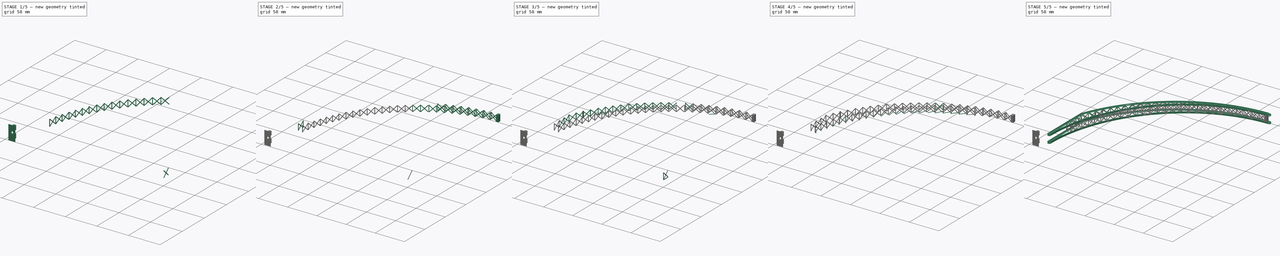
[diagram: build sequence overview — one tinted view per stage of 5, left to right]
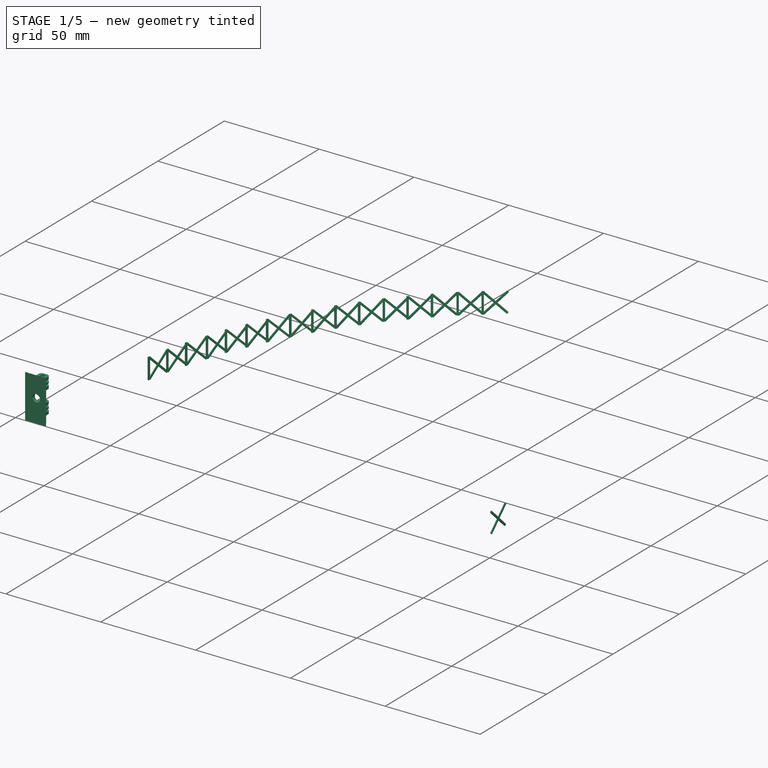
[diagram: stage 1 of 5 — iso view after this stage's code; geometry added in this stage tinted green]
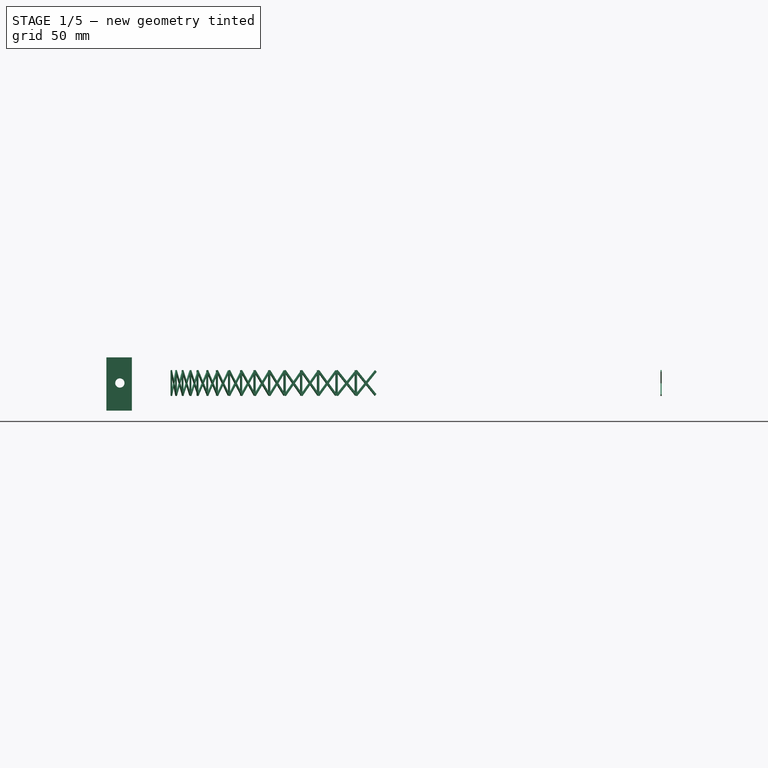
[diagram: stage 1 of 5 — front view after this stage's code; geometry added in this stage tinted green]
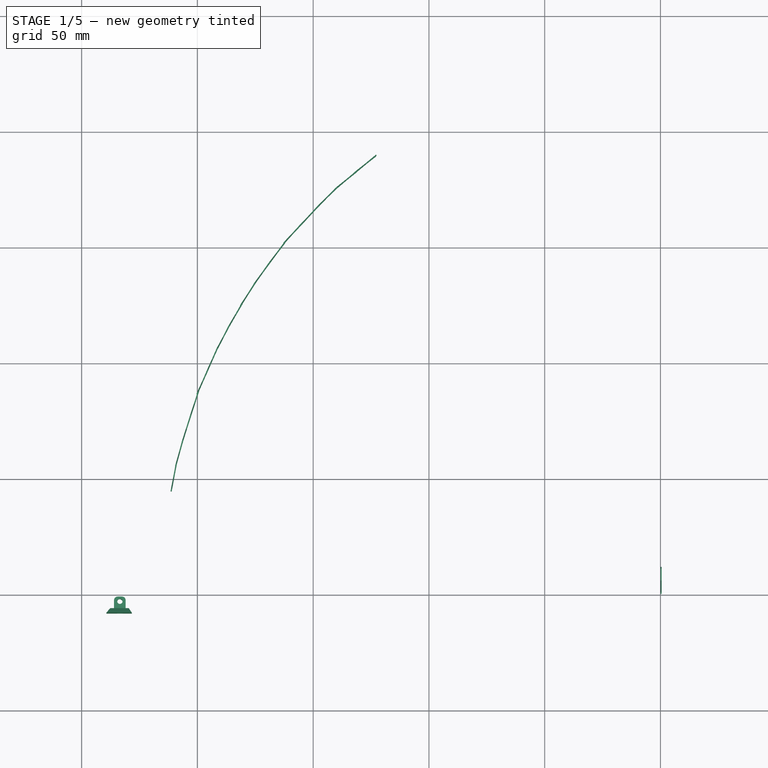
[diagram: stage 1 of 5 — top view after this stage's code; geometry added in this stage tinted green]
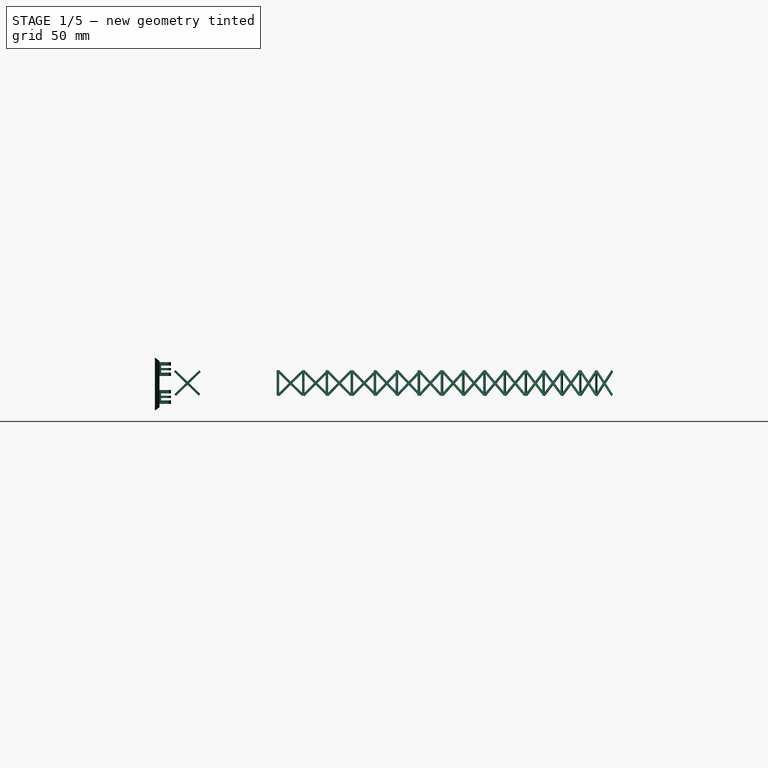
[diagram: stage 1 of 5 — right view after this stage's code; geometry added in this stage tinted green]
FCSTD DOCUMENT  (FreeCAD 0.16R6712 (Git))
Label: Cabriada final entera
License: All rights reserved
LicenseURL: http://en.wikipedia.org/wiki/All_rights_reserved
objects: Part::Box×272, Part::MultiFuse×61, Part::Cut×58, Sketcher::SketchObject×17, Part::Sweep×4, Part::Extrusion×4, Part::Part2DObjectPython×2, PartDesign::Pad×2, Part::Loft×1, Part::Cylinder×1, Part::Fillet×1
note: 425 computed .brp shape members not serialized (recipe doc carries the construction recipe); baked Part::Feature solids carry a one-line shape summary decoded from their .brp

FEATURE [Sketcher::SketchObject] Sketch003
  sketch-geometry (7):
    g0: LineSegment StartX=-0.94599 StartY=5 StartZ=0 EndX=0.94599 EndY=5 EndZ=0
    g1: LineSegment StartX=2.5 StartY=3.44599 StartZ=0 EndX=2.5 EndY=0 EndZ=0
    g2: LineSegment StartX=2.5 StartY=0 StartZ=0 EndX=-2.5 EndY=0 EndZ=0
    g3: LineSegment StartX=-2.5 StartY=0 StartZ=0 EndX=-2.5 EndY=3.44599 EndZ=0
    g4: ArcOfCircle CenterX=0.94599 CenterY=3.44599 CenterZ=0 NormalX=0 NormalY=0 NormalZ=1 Radius=1.55401 StartAngle=0 EndAngle=1.5708
    g5: ArcOfCircle CenterX=-0.94599 CenterY=3.44599 CenterZ=0 NormalX=0 NormalY=0 NormalZ=1 Radius=1.55401 StartAngle=1.5708 EndAngle=3.14159
    g6: Circle CenterX=0 CenterY=2.97603 CenterZ=0 NormalX=0 NormalY=0 NormalZ=1 Radius=1.15
  constraints (19):
    c: Coincident(g1,g2)
    c: Coincident(g2,g3)
    c: Horizontal(g0)
    c: Horizontal(g2)
    c: Vertical(g1)
    c: Vertical(g3)
    c: PointOnObject(g1,g-1)
    c: Tangent(g0,g4) = 1.5708
    c: Tangent(g1,g4) = 1.5708
    c: Tangent(g0,g5) = 1.5708
    c: Tangent(g3,g5) = 1.5708
    c: Symmetric(g2,g1,g-2)
    c: Equal(g4,g5)
    c: DistanceX(g2,g2) = 5
    c: DistanceY(g1,g0) = 5
    c: PointOnObject(g6,g-2)
    c: Radius(g6) = 1.15
    c: Radius(g5) = 1.55401
    c: DistanceY(g2,g6) = 2.97603
FEATURE [PartDesign::Pad] Pad  label="Pivote del piso"
  Length = 6
  Length2 = 100
  Midplane = true
  Sketch = -> Sketch003
  Type = 0
FEATURE [Part::Box] Box002  label="Cubo002"
  Height = 1
  Length = 10
  Placement = pos=(-5,0.7,-1.5) rot=(0,0,1;0rad)
  Width = 10
FEATURE [Sketcher::SketchObject] Sketch006  label="Pivote inf "
  Placement = pos=(0,12,0) rot=(0,0,1;3.14159rad)
  sketch-geometry (7):
    g0: LineSegment StartX=-0.94599 StartY=5 StartZ=0 EndX=0.94599 EndY=5 EndZ=0
    g1: LineSegment StartX=2.5 StartY=3.44599 StartZ=0 EndX=2.5 EndY=0 EndZ=0
    g2: LineSegment StartX=2.5 StartY=0 StartZ=0 EndX=-2.5 EndY=0 EndZ=0
    g3: LineSegment StartX=-2.5 StartY=0 StartZ=0 EndX=-2.5 EndY=3.44599 EndZ=0
    g4: ArcOfCircle CenterX=0.94599 CenterY=3.44599 CenterZ=0 NormalX=0 NormalY=0 NormalZ=1 Radius=1.55401 StartAngle=0 EndAngle=1.5708
    g5: ArcOfCircle CenterX=-0.94599 CenterY=3.44599 CenterZ=0 NormalX=0 NormalY=0 NormalZ=1 Radius=1.55401 StartAngle=1.5708 EndAngle=3.14159
    g6: Circle CenterX=0 CenterY=2.97603 CenterZ=0 NormalX=0 NormalY=0 NormalZ=1 Radius=1.15
  constraints (19):
    c: Coincident(g1,g2)
    c: Coincident(g2,g3)
    c: Horizontal(g0)
    c: Horizontal(g2)
    c: Vertical(g1)
    c: Vertical(g3)
    c: PointOnObject(g1,g-1)
    c: Tangent(g0,g4) = 1.5708
    c: Tangent(g1,g4) = 1.5708
    c: Tangent(g0,g5) = 1.5708
    c: Tangent(g3,g5) = 1.5708
    c: Symmetric(g2,g1,g-2)
    c: Equal(g4,g5)
    c: DistanceX(g2,g2) = 5
    c: DistanceY(g1,g0) = 5
    c: PointOnObject(g6,g-2)
    c: Radius(g6) = 1.15
    c: Radius(g5) = 1.55401
    c: DistanceY(g2,g6) = 2.97603
FEATURE [Part::Box] Box004  label="Cubo004"
  Height = 1
  Length = 10
  Placement = pos=(-6,0.7,0.5) rot=(0,0,1;0rad)
  Width = 10
FEATURE [Part::Cut] Cut004
  Base = -> Pad
  Tool = -> Box002
FEATURE [Part::Cut] Cut005  label="Pivote Piso"
  Base = -> Cut004
  Placement = pos=(-233.5,-6,0) rot=(0,0,1;0rad)
  Tool = -> Box004
FEATURE [Part::Box] Box324  label="Cubo323"
  Height = 15
  Length = 0.5
  Placement = pos=(0,11,0.5) rot=(1,0,0;0.802851rad)
  Width = 1
FEATURE [Part::Box] Box325  label="Cubo324"
  Height = 15
  Length = 0.5
  Placement = pos=(0,0.4,1.1) rot=(-1,0,0;0.802851rad)
  Width = 1
FEATURE [Part::Box] Box326  label="Cubo325"
  Height = 11
  Length = 0.5
  Placement = pos=(0,0,0.5) rot=(0,0,1;0rad)
  Width = 1
FEATURE [Part::Box] Box327  label="Cubo326"
  Height = 15
  Length = 0.5
  Placement = pos=(0,11,0.5) rot=(1,0,0;0.802851rad)
  Width = 1
FEATURE [Part::Box] Box328  label="Cubo327"
  Height = 15
  Length = 0.5
  Placement = pos=(0,0.4,1.1) rot=(-1,0,0;0.802851rad)
  Width = 1
FEATURE [Part::MultiFuse] Fusion051  label="Refuerzo interior 009"
  Placement = pos=(-132.1,182.5,0) rot=(0,0,-1;0.890118rad)
  Shapes = -> [Box326,Box327,Box328]
FEATURE [Part::Box] Box329  label="Cubo328"
  Height = 11
  Length = 0.5
  Placement = pos=(0,0,0.5) rot=(0,0,1;0rad)
  Width = 1
FEATURE [Part::Box] Box330  label="Cubo329"
  Height = 15
  Length = 0.5
  Placement = pos=(0,11,0.5) rot=(1,0,0;0.802851rad)
  Width = 1
FEATURE [Part::Box] Box331  label="Cubo330"
  Height = 15
  Length = 0.5
  Placement = pos=(0,0.4,1.1) rot=(-1,0,0;0.802851rad)
  Width = 1
FEATURE [Part::MultiFuse] Fusion052  label="Refuerzo interior 008"
  Placement = pos=(-140.4,175.6,0) rot=(0,0,-1;0.883137rad)
  Shapes = -> [Box329,Box330,Box331]
FEATURE [Part::Box] Box332  label="Cubo331"
  Height = 11
  Length = 0.5
  Placement = pos=(0,0,0.5) rot=(0,0,1;0rad)
  Width = 1
FEATURE [Part::Box] Box333  label="Cubo332"
  Height = 15
  Length = 0.5
  Placement = pos=(0,11,0.5) rot=(1,0,0;0.802851rad)
  Width = 1
FEATURE [Part::Box] Box334  label="Cubo333"
  Height = 15
  Length = 0.5
  Placement = pos=(0,0.4,1.1) rot=(-1,0,0;0.802851rad)
  Width = 1
FEATURE [Part::MultiFuse] Fusion053  label="Refuerzo interior 007"
  Placement = pos=(-148.4,167.6,0) rot=(0,0,-1;0.787143rad)
  Shapes = -> [Box332,Box333,Box334]
FEATURE [Part::Box] Box335  label="Cubo334"
  Height = 11
  Length = 0.5
  Placement = pos=(0,0,0.5) rot=(0,0,1;0rad)
  Width = 1
FEATURE [Part::Box] Box336  label="Cubo335"
  Height = 15
  Length = 0.5
  Placement = pos=(0,11,0.5) rot=(1,0,0;0.802851rad)
  Width = 1
FEATURE [Part::Box] Box337  label="Cubo336"
  Height = 15
  Length = 0.5
  Placement = pos=(0,0.4,1.1) rot=(-1,0,0;0.802851rad)
  Width = 1
FEATURE [Part::MultiFuse] Fusion054  label="Refuerzo interior 006"
  Placement = pos=(-155.7,159.7,0) rot=(0,0,-1;0.750492rad)
  Shapes = -> [Box335,Box336,Box337]
FEATURE [Part::Box] Box338  label="Cubo337"
  Height = 11
  Length = 0.5
  Placement = pos=(0,0,0.5) rot=(0,0,1;0rad)
  Width = 1
FEATURE [Part::Box] Box339  label="Cubo338"
  Height = 15
  Length = 0.5
  Placement = pos=(0,11,0.5) rot=(1,0,0;0.802851rad)
  Width = 1
FEATURE [Part::Box] Box340  label="Cubo339"
  Height = 15
  Length = 0.5
  Placement = pos=(0,0.4,1.1) rot=(-1,0,0;0.802851rad)
  Width = 1
FEATURE [Part::MultiFuse] Fusion055  label="Refuerzo interior 005"
  Placement = pos=(-162.85,152,0) rot=(0,0,-1;0.745256rad)
  Shapes = -> [Box338,Box339,Box340]
FEATURE [Part::Box] Box341  label="Cubo340"
  Height = 11
  Length = 0.5
  Placement = pos=(0,0,0.5) rot=(0,0,1;0rad)
  Width = 1
FEATURE [Part::Box] Box342  label="Cubo341"
  Height = 15
  Length = 0.5
  Placement = pos=(0,11,0.5) rot=(1,0,0;0.802851rad)
  Width = 1
FEATURE [Part::Box] Box343  label="Cubo342"
  Height = 15
  Length = 0.5
  Placement = pos=(0,0.4,1.1) rot=(-1,0,0;0.802851rad)
  Width = 1
FEATURE [Part::MultiFuse] Fusion056  label="Refuerzo interior 004"
  Placement = pos=(-169.5,142.89,0) rot=(0,0,-1;0.645772rad)
  Shapes = -> [Box341,Box342,Box343]
FEATURE [Part::Box] Box344  label="Cubo343"
  Height = 11
  Length = 0.5
  Placement = pos=(0,0,0.5) rot=(0,0,1;0rad)
  Width = 1
FEATURE [Part::Box] Box345  label="Cubo344"
  Height = 15
  Length = 0.5
  Placement = pos=(0,11,0.5) rot=(1,0,0;0.802851rad)
  Width = 1
FEATURE [Part::Box] Box346  label="Cubo345"
  Height = 15
  Length = 0.5
  Placement = pos=(0,0.4,1.1) rot=(-1,0,0;0.802851rad)
  Width = 1
FEATURE [Part::MultiFuse] Fusion057  label="Refuerzo interior 003"
  Placement = pos=(-175.8,134.1,0) rot=(0,0,-1;0.623083rad)
  Shapes = -> [Box344,Box345,Box346]
FEATURE [Part::Box] Box347  label="Cubo346"
  Height = 11
  Length = 0.5
  Placement = pos=(0,0,0.5) rot=(0,0,1;0rad)
  Width = 1
FEATURE [Part::Box] Box348  label="Cubo347"
  Height = 15
  Length = 0.5
  Placement = pos=(0,11,0.5) rot=(1,0,0;0.802851rad)
  Width = 1
FEATURE [Part::Box] Box349  label="Cubo348"
  Height = 15
  Length = 0.5
  Placement = pos=(0,0.4,1.1) rot=(-1,0,0;0.802851rad)
  Width = 1
FEATURE [Part::MultiFuse] Fusion058  label="Refuerzo interior 002"
  Placement = pos=(-181.6,124.9,0) rot=(0,0,-1;0.568977rad)
  Shapes = -> [Box347,Box348,Box349]
FEATURE [Part::Box] Box350  label="Cubo349"
  Height = 11
  Length = 0.5
  Placement = pos=(0,0,0.5) rot=(0,0,1;0rad)
  Width = 1
FEATURE [Part::Box] Box351  label="Cubo350"
  Height = 15
  Length = 0.5
  Placement = pos=(0,11,0.5) rot=(1,0,0;0.802851rad)
  Width = 1
FEATURE [Part::Box] Box352  label="Cubo351"
  Height = 15
  Length = 0.5
  Placement = pos=(0,0.4,1.1) rot=(-1,0,0;0.802851rad)
  Width = 1
FEATURE [Part::MultiFuse] Fusion059  label="Refuerzo interior 001"
  Placement = pos=(-186.8,115.7,0) rot=(0,0,-1;0.527089rad)
  Shapes = -> [Box350,Box351,Box352]
FEATURE [Part::Box] Box353  label="Cubo352"
  Height = 11
  Length = 0.5
  Placement = pos=(0,0,0.5) rot=(0,0,1;0rad)
  Width = 1
FEATURE [Part::Box] Box354  label="Cubo353"
  Height = 15
  Length = 0.5
  Placement = pos=(0,11,0.5) rot=(1,0,0;0.802851rad)
  Width = 1
FEATURE [Part::Box] Box355  label="Cubo354"
  Height = 15
  Length = 0.5
  Placement = pos=(0,0.4,1.1) rot=(-1,0,0;0.802851rad)
  Width = 1
FEATURE [Part::MultiFuse] Fusion060  label="Refuerzo interior 000"
  Placement = pos=(-192,105.7,0) rot=(0,0,-1;0.481711rad)
  Shapes = -> [Box353,Box354,Box355]
FEATURE [Part::Box] Box356  label="Cubo355"
  Height = 11
  Length = 0.5
  Placement = pos=(0,0,0.5) rot=(0,0,1;0rad)
  Width = 1
FEATURE [Part::Box] Box357  label="Cubo356"
  Height = 15
  Length = 0.5
  Placement = pos=(0,11,0.5) rot=(1,0,0;0.802851rad)
  Width = 1
FEATURE [Part::Box] Box358  label="Cubo357"
  Height = 15
  Length = 0.5
  Placement = pos=(0,0.4,1.1) rot=(-1,0,0;0.802851rad)
  Width = 1
FEATURE [Part::MultiFuse] Fusion061  label="Refuerzo interior -001"
  Placement = pos=(-196.2,96.2,0) rot=(0,0,-1;0.418879rad)
  Shapes = -> [Box356,Box357,Box358]
FEATURE [Part::Box] Box359  label="Cubo358"
  Height = 11
  Length = 0.5
  Placement = pos=(0,0,0.5) rot=(0,0,1;0rad)
  Width = 1
FEATURE [Part::Box] Box360  label="Cubo359"
  Height = 15
  Length = 0.5
  Placement = pos=(0,11,0.5) rot=(1,0,0;0.802851rad)
  Width = 1
FEATURE [Part::Box] Box361  label="Cubo360"
  Height = 15
  Length = 0.5
  Placement = pos=(0,0.4,1.1) rot=(-1,0,0;0.802851rad)
  Width = 1
FEATURE [Part::MultiFuse] Fusion062  label="Refuerzo interior -002"
  Placement = pos=(-200.4,86.7,0) rot=(0,0,-1;0.418879rad)
  Shapes = -> [Box359,Box360,Box361]
FEATURE [Part::Box] Box362  label="Cubo361"
  Height = 11
  Length = 0.5
  Placement = pos=(0,0,0.5) rot=(0,0,1;0rad)
  Width = 1
FEATURE [Part::Box] Box363  label="Cubo362"
  Height = 15
  Length = 0.5
  Placement = pos=(0,11,0.5) rot=(1,0,0;0.802851rad)
  Width = 1
FEATURE [Part::Box] Box364  label="Cubo363"
  Height = 15
  Length = 0.5
  Placement = pos=(0,0.4,1.1) rot=(-1,0,0;0.802851rad)
  Width = 1
FEATURE [Part::MultiFuse] Fusion063  label="Refuerzo interior -003"
  Placement = pos=(-203.4,76.7,0) rot=(0,0,-1;0.314159rad)
  Shapes = -> [Box362,Box363,Box364]
FEATURE [Part::Box] Box365  label="Cubo364"
  Height = 11
  Length = 0.5
  Placement = pos=(0,0,0.5) rot=(0,0,1;0rad)
  Width = 1
FEATURE [Part::Box] Box366  label="Cubo365"
  Height = 15
  Length = 0.5
  Placement = pos=(0,11,0.5) rot=(1,0,0;0.802851rad)
  Width = 1
FEATURE [Part::Box] Box367  label="Cubo366"
  Height = 15
  Length = 0.5
  Placement = pos=(0,0.4,1.1) rot=(-1,0,0;0.802851rad)
  Width = 1
FEATURE [Part::MultiFuse] Fusion064  label="Refuerzo interior -004"
  Placement = pos=(-206.8,65.9,0) rot=(0,0,-1;0.305433rad)
  Shapes = -> [Box365,Box366,Box367]
FEATURE [Part::Box] Box368  label="Cubo367"
  Height = 11
  Length = 0.5
  Placement = pos=(0,0,0.5) rot=(0,0,1;0rad)
  Width = 1
FEATURE [Part::Box] Box369  label="Cubo368"
  Height = 15
  Length = 0.5
  Placement = pos=(0,11,0.5) rot=(1,0,0;0.802851rad)
  Width = 1
FEATURE [Part::Box] Box370  label="Cubo369"
  Height = 15
  Length = 0.5
  Placement = pos=(0,0.4,1.1) rot=(-1,0,0;0.802851rad)
  Width = 1
FEATURE [Part::MultiFuse] Fusion065  label="Refuerzo interior -005"
  Placement = pos=(-209.6,55.7,0) rot=(0,0,-1;0.270526rad)
  Shapes = -> [Box368,Box369,Box370]
FEATURE [Part::Box] Box371  label="Cubo370"
  Height = 11
  Length = 0.5
  Placement = pos=(0,0,0.5) rot=(0,0,1;0rad)
  Width = 1
FEATURE [Part::Box] Box372  label="Cubo371"
  Height = 15
  Length = 0.5
  Placement = pos=(0,11,0.5) rot=(1,0,0;0.802851rad)
  Width = 1
FEATURE [Part::Box] Box373  label="Cubo372"
  Height = 15
  Length = 0.5
  Placement = pos=(0,0.4,1.1) rot=(-1,0,0;0.802851rad)
  Width = 1
FEATURE [Part::MultiFuse] Fusion066  label="Refuerzo interior -006"
  Placement = pos=(-211.6,44.7,0) rot=(0,0,-1;0.18675rad)
  Shapes = -> [Box371,Box372,Box373]
FEATURE [Sketcher::SketchObject] Sketch015
  sketch-geometry (7):
    g0: LineSegment StartX=-0.94599 StartY=5 StartZ=0 EndX=0.94599 EndY=5 EndZ=0
    g1: LineSegment StartX=2.5 StartY=3.44599 StartZ=0 EndX=2.5 EndY=0 EndZ=0
    g2: LineSegment StartX=2.5 StartY=0 StartZ=0 EndX=-2.5 EndY=0 EndZ=0
    g3: LineSegment StartX=-2.5 StartY=0 StartZ=0 EndX=-2.5 EndY=3.44599 EndZ=0
    g4: ArcOfCircle CenterX=0.94599 CenterY=3.44599 CenterZ=0 NormalX=0 NormalY=0 NormalZ=1 Radius=1.55401 StartAngle=0 EndAngle=1.5708
    g5: ArcOfCircle CenterX=-0.94599 CenterY=3.44599 CenterZ=0 NormalX=0 NormalY=0 NormalZ=1 Radius=1.55401 StartAngle=1.5708 EndAngle=3.14159
    g6: Circle CenterX=0 CenterY=2.97603 CenterZ=0 NormalX=0 NormalY=0 NormalZ=1 Radius=1.15
  constraints (19):
    c: Coincident(g1,g2)
    c: Coincident(g2,g3)
    c: Horizontal(g0)
    c: Horizontal(g2)
    c: Vertical(g1)
    c: Vertical(g3)
    c: PointOnObject(g1,g-1)
    c: Tangent(g0,g4) = 1.5708
    c: Tangent(g1,g4) = 1.5708
    c: Tangent(g0,g5) = 1.5708
    c: Tangent(g3,g5) = 1.5708
    c: Symmetric(g2,g1,g-2)
    c: Equal(g4,g5)
    c: DistanceX(g2,g2) = 5
    c: DistanceY(g1,g0) = 5
    c: PointOnObject(g6,g-2)
    c: Radius(g6) = 1.15
    c: Radius(g5) = 1.55401
    c: DistanceY(g2,g6) = 2.97603
FEATURE [PartDesign::Pad] Pad001  label="Pivote del piso001"
  Length = 6
  Length2 = 100
  Midplane = true
  Sketch = -> Sketch015
  Type = 0
FEATURE [Part::Box] Box374  label="Cubo373"
  Height = 1
  Length = 10
  Placement = pos=(-5,0.7,-1.5) rot=(0,0,1;0rad)
  Width = 10
FEATURE [Part::Box] Box375  label="Cubo374"
  Height = 1
  Length = 10
  Placement = pos=(-6,0.7,0.5) rot=(0,0,1;0rad)
  Width = 10
FEATURE [Part::Cut] Cut103
  Base = -> Pad001
  Tool = -> Box374
FEATURE [Part::Cut] Cut104  label="Pivote Piso001"
  Base = -> Cut103
  Placement = pos=(-233.5,-6,12) rot=(0,0,1;0rad)
  Tool = -> Box375
FEATURE [Sketcher::SketchObject] Sketch016
  Placement = pos=(0,0,0) rot=(0.57735,0.57735,0.57735;2.0944rad)
FEATURE [Sketcher::SketchObject] Sketch017
  Placement = pos=(0,-7,0) rot=(-1,0,0;4.71239rad)
  sketch-geometry (4):
    g0: LineSegment StartX=-238.671 StartY=-4.51199 StartZ=0 EndX=-230.671 EndY=-4.51199 EndZ=0
    g1: LineSegment StartX=-230.671 StartY=-4.51199 StartZ=0 EndX=-230.671 EndY=15.488 EndZ=0
    g2: LineSegment StartX=-230.671 StartY=15.488 StartZ=0 EndX=-238.671 EndY=15.488 EndZ=0
    g3: LineSegment StartX=-238.671 StartY=15.488 StartZ=0 EndX=-238.671 EndY=-4.51199 EndZ=0
  constraints (10):
    c: Coincident(g0,g1)
    c: Coincident(g1,g2)
    c: Coincident(g2,g3)
    c: Coincident(g3,g0)
    c: Horizontal(g0)
    c: Horizontal(g2)
    c: Vertical(g1)
    c: Vertical(g3)
    c: DistanceY(g3,g3) = 20
    c: DistanceX(g0,g0) = 8
FEATURE [Sketcher::SketchObject] Sketch018
  Placement = pos=(0,-9,-0.5) rot=(1,0,0;1.5708rad)
  sketch-geometry (4):
    g0: LineSegment StartX=-240.307 StartY=-5.43123 StartZ=0 EndX=-229.307 EndY=-5.43123 EndZ=0
    g1: LineSegment StartX=-229.307 StartY=-5.43123 StartZ=0 EndX=-229.307 EndY=17.5688 EndZ=0
    g2: LineSegment StartX=-229.307 StartY=17.5688 StartZ=0 EndX=-240.307 EndY=17.5688 EndZ=0
    g3: LineSegment StartX=-240.307 StartY=17.5688 StartZ=0 EndX=-240.307 EndY=-5.43123 EndZ=0
  constraints (10):
    c: Coincident(g0,g1)
    c: Coincident(g1,g2)
    c: Coincident(g2,g3)
    c: Coincident(g3,g0)
    c: Horizontal(g0)
    c: Horizontal(g2)
    c: Vertical(g1)
    c: Vertical(g3)
    c: DistanceY(g3,g3) = 23
    c: DistanceX(g0,g0) = 11
FEATURE [Part::Loft] Loft  label="Base inferior"
  Closed = false
  Placement = pos=(1,1,0) rot=(0,0,1;0rad)
  Ruled = false
  Sections = -> [Sketch018,Sketch017]
  Solid = true
FEATURE [Part::MultiFuse] Fusion067
  Shapes = -> [Loft,Cut005,Cut104]
FEATURE [Part::Cylinder] Cylinder  label="Cilindro"
  Angle = 360
  Height = 10
  Placement = pos=(-233.5,0,6) rot=(1,0,0;1.5708rad)
  Radius = 2
FEATURE [Part::Cut] Cut105  label="Base cabriadas"
  Base = -> Fusion067
  Tool = -> Cylinder
FEATURE [Part::Fillet] Fillet  label="Base cabriada"
  Base = -> Cut105
  Edges = 1 edges r=0.2: [Edge13]
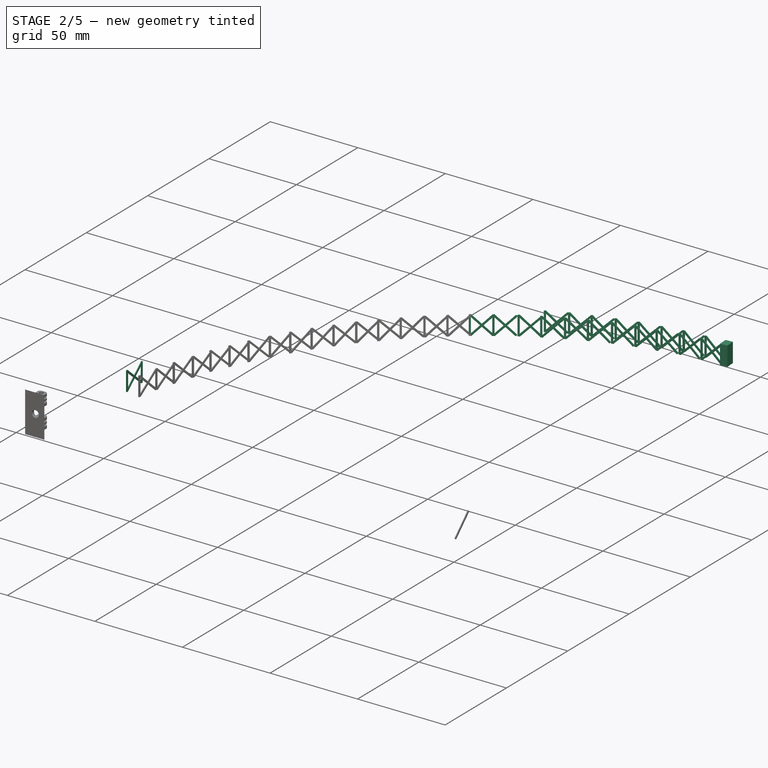
[diagram: stage 2 of 5 — iso view after this stage's code; geometry added in this stage tinted green]
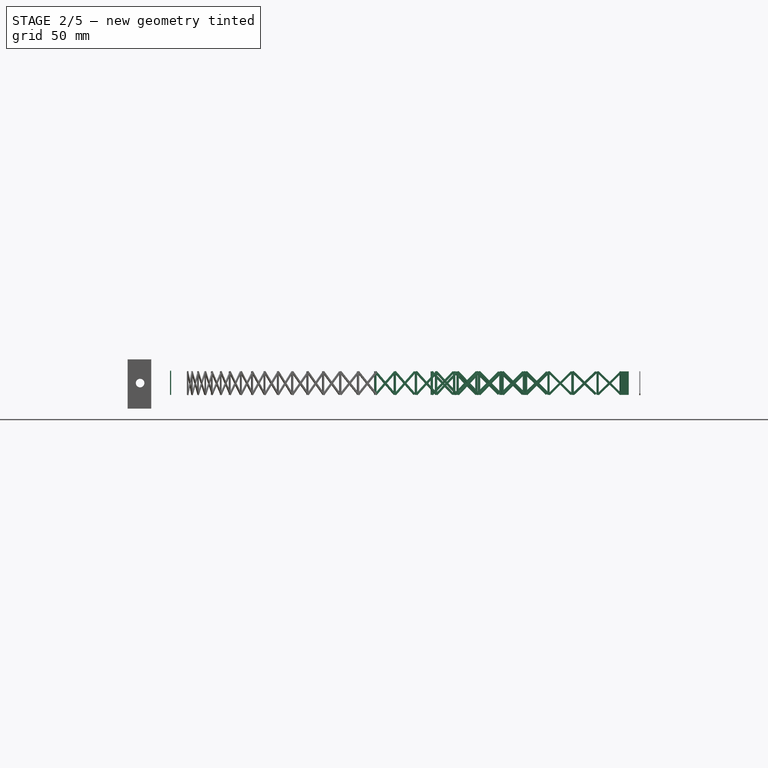
[diagram: stage 2 of 5 — front view after this stage's code; geometry added in this stage tinted green]
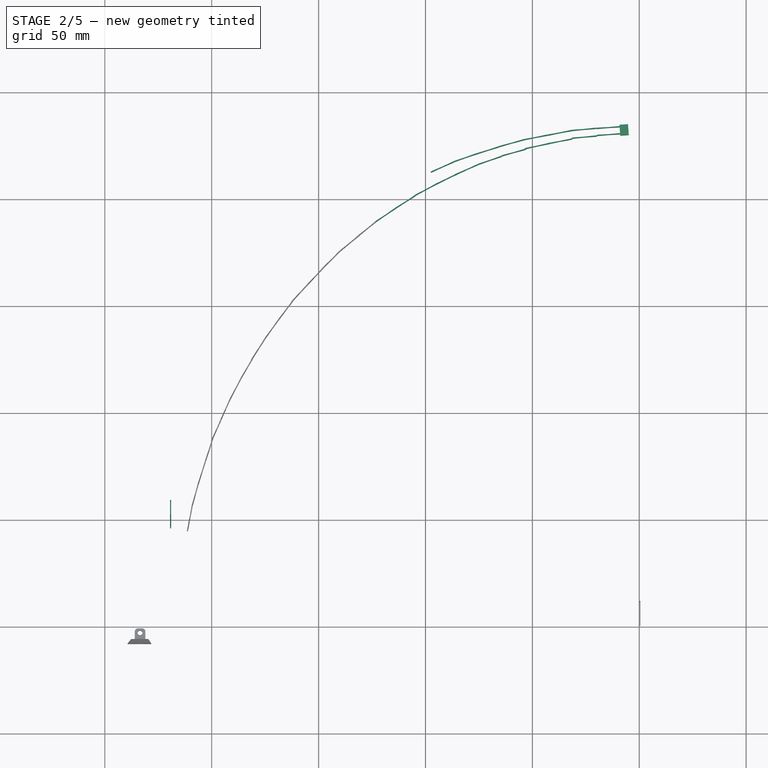
[diagram: stage 2 of 5 — top view after this stage's code; geometry added in this stage tinted green]
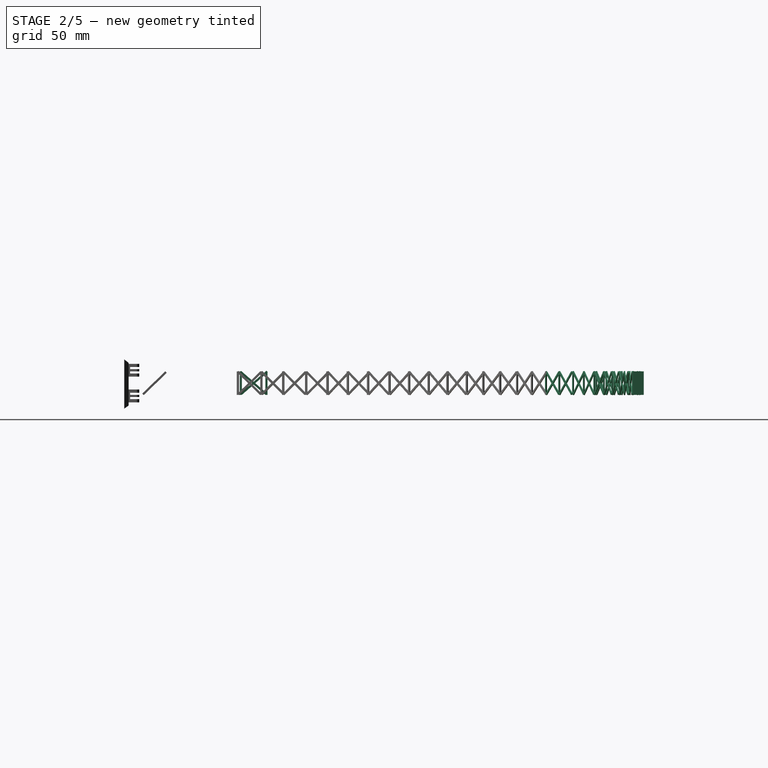
[diagram: stage 2 of 5 — right view after this stage's code; geometry added in this stage tinted green]
FEATURE [Part::Box] Box263  label="Cubo263"
  Height = 15
  Length = 0.5
  Placement = pos=(0,0.4,1.1) rot=(-1,0,0;0.802851rad)
  Width = 1
FEATURE [Part::Box] Box264  label="Cubo264"
  Height = 11
  Length = 0.5
  Placement = pos=(0,0,0.5) rot=(0,0,1;0rad)
  Width = 1
FEATURE [Part::Box] Box265  label="Cubo265"
  Height = 15
  Length = 0.5
  Placement = pos=(0,11,0.5) rot=(1,0,0;0.802851rad)
  Width = 1
FEATURE [Part::Box] Box266  label="Cubo266"
  Height = 15
  Length = 0.5
  Placement = pos=(0,0.4,1.1) rot=(-1,0,0;0.802851rad)
  Width = 1
FEATURE [Part::MultiFuse] Fusion031  label="Refuerzo Exterior 013"
  Placement = pos=(-97.6,212.8,0) rot=(0,0,-1;1.15017rad)
  Shapes = -> [Box264,Box265,Box266]
FEATURE [Part::Box] Box267  label="Cubo267"
  Height = 11
  Length = 0.5
  Placement = pos=(0,0,0.5) rot=(0,0,1;0rad)
  Width = 1
FEATURE [Part::Box] Box268  label="Cubo268"
  Height = 15
  Length = 0.5
  Placement = pos=(0,11,0.5) rot=(1,0,0;0.802851rad)
  Width = 1
FEATURE [Part::Box] Box269  label="Cubo269"
  Height = 15
  Length = 0.5
  Placement = pos=(0,0.4,1.1) rot=(-1,0,0;0.802851rad)
  Width = 1
FEATURE [Part::MultiFuse] Fusion032  label="Refuerzo Exterior 014"
  Placement = pos=(-87.1,217.6,0) rot=(0,0,-1;1.23744rad)
  Shapes = -> [Box267,Box268,Box269]
FEATURE [Part::Box] Box270  label="Cubo270"
  Height = 11
  Length = 0.5
  Placement = pos=(0,0,0.5) rot=(0,0,1;0rad)
  Width = 1
FEATURE [Part::Box] Box271  label="Cubo271"
  Height = 15
  Length = 0.5
  Placement = pos=(0,11,0.5) rot=(1,0,0;0.802851rad)
  Width = 1
FEATURE [Part::Box] Box272  label="Cubo272"
  Height = 15
  Length = 0.5
  Placement = pos=(0,0.4,1.1) rot=(-1,0,0;0.802851rad)
  Width = 1
FEATURE [Part::MultiFuse] Fusion033  label="Refuerzo Exterior 015"
  Placement = pos=(-76.7,221.2,0) rot=(0,0,-1;1.26711rad)
  Shapes = -> [Box270,Box271,Box272]
FEATURE [Part::Box] Box273  label="Cubo273"
  Height = 11
  Length = 0.5
  Placement = pos=(0,0,0.5) rot=(0,0,1;0rad)
  Width = 1
FEATURE [Part::Box] Box274  label="Cubo274"
  Height = 15
  Length = 0.5
  Placement = pos=(0,11,0.5) rot=(1,0,0;0.802851rad)
  Width = 1
FEATURE [Part::Box] Box275  label="Cubo275"
  Height = 15
  Length = 0.5
  Placement = pos=(0,0.4,1.1) rot=(-1,0,0;0.802851rad)
  Width = 1
FEATURE [Part::MultiFuse] Fusion034  label="Refuerzo Exterior 016"
  Placement = pos=(-65.5,224.8,0) rot=(0,0,-1;1.30202rad)
  Shapes = -> [Box273,Box274,Box275]
FEATURE [Part::Box] Box276  label="Cubo276"
  Height = 11
  Length = 0.5
  Placement = pos=(0,0,0.5) rot=(0,0,1;0rad)
  Width = 1
FEATURE [Part::Box] Box277  label="Cubo277"
  Height = 15
  Length = 0.5
  Placement = pos=(0,11,0.5) rot=(1,0,0;0.802851rad)
  Width = 1
FEATURE [Part::Box] Box278  label="Cubo278"
  Height = 15
  Length = 0.5
  Placement = pos=(0,0.4,1.1) rot=(-1,0,0;0.802851rad)
  Width = 1
FEATURE [Part::MultiFuse] Fusion035  label="Refuerzo Exterior 017"
  Placement = pos=(-54.5,227.9,0) rot=(0,0,-1;1.38055rad)
  Shapes = -> [Box276,Box277,Box278]
FEATURE [Part::Box] Box279  label="Cubo279"
  Height = 11
  Length = 0.5
  Placement = pos=(0,0,0.5) rot=(0,0,1;0rad)
  Width = 1
FEATURE [Part::Box] Box280  label="Cubo280"
  Height = 15
  Length = 0.5
  Placement = pos=(0,11,0.5) rot=(1,0,0;0.802851rad)
  Width = 1
FEATURE [Part::Box] Box281  label="Cubo281"
  Height = 15
  Length = 0.5
  Placement = pos=(0,0.4,1.1) rot=(-1,0,0;0.802851rad)
  Width = 1
FEATURE [Part::MultiFuse] Fusion036  label="Refuerzo Exterior 018"
  Placement = pos=(-43,230.1,0) rot=(0,0,-1;1.38055rad)
  Shapes = -> [Box279,Box280,Box281]
FEATURE [Part::Box] Box282  label="Cubo282"
  Height = 11
  Length = 0.5
  Placement = pos=(0,0,0.5) rot=(0,0,1;0rad)
  Width = 1
FEATURE [Part::Box] Box283  label="Cubo283"
  Height = 15
  Length = 0.5
  Placement = pos=(0,11,0.5) rot=(1,0,0;0.802851rad)
  Width = 1
FEATURE [Part::Box] Box284  label="Cubo284"
  Height = 15
  Length = 0.5
  Placement = pos=(0,0.4,1.1) rot=(-1,0,0;0.802851rad)
  Width = 1
FEATURE [Part::MultiFuse] Fusion037  label="Refuerzo Exterior 019"
  Placement = pos=(-31.8,232.3,0) rot=(0,0,-1;1.48353rad)
  Shapes = -> [Box282,Box283,Box284]
FEATURE [Part::Box] Box285  label="Cubo285"
  Height = 11
  Length = 0.5
  Placement = pos=(0,0,0.5) rot=(0,0,1;0rad)
  Width = 1
FEATURE [Part::Box] Box286  label="Cubo286"
  Height = 15
  Length = 0.5
  Placement = pos=(0,11,0.5) rot=(1,0,0;0.802851rad)
  Width = 1
FEATURE [Part::Box] Box287  label="Cubo287"
  Height = 15
  Length = 0.5
  Placement = pos=(0,0.4,1.1) rot=(-1,0,0;0.802851rad)
  Width = 1
FEATURE [Part::MultiFuse] Fusion038  label="Refuerzo Exterior 020"
  Placement = pos=(-20,233.3,0) rot=(0,0,-1;1.50098rad)
  Shapes = -> [Box285,Box286,Box287]
FEATURE [Part::Box] Box288  label="Terminal superior"
  Height = 11
  Length = 4
  Placement = pos=(-8.9,229.7,0.5) rot=(0,0,1;0.069813rad)
  Width = 5
FEATURE [Part::Box] Box289  label="Cubo288"
  Height = 11
  Length = 0.5
  Placement = pos=(0,0,0.5) rot=(0,0,1;0rad)
  Width = 1
FEATURE [Part::Box] Box290  label="Cubo289"
  Height = 11
  Length = 0.5
  Placement = pos=(0,12,0.5) rot=(0,0,1;0rad)
  Width = 1
FEATURE [Part::Box] Box291  label="Cubo290"
  Height = 16
  Length = 0.5
  Placement = pos=(0,12,0.5) rot=(1,0,0;0.855211rad)
  Width = 1
FEATURE [Part::Box] Box292  label="Cubo291"
  Height = 16
  Length = 0.5
  Placement = pos=(0,0.4,1.3) rot=(-1,0,0;0.855211rad)
  Width = 1
FEATURE [Part::MultiFuse] Fusion039  label="Refuerzo Ext 007"
  Placement = pos=(-219.5,46,0) rot=(0,0,1;0rad)
  Shapes = -> [Box289,Box290,Box291,Box292]
FEATURE [Part::Box] Box293  label="Cubo292"
  Height = 11
  Length = 0.5
  Placement = pos=(0,0,0.5) rot=(0,0,1;0rad)
  Width = 1
FEATURE [Part::Box] Box294  label="Cubo293"
  Height = 15
  Length = 0.5
  Placement = pos=(0,11,0.5) rot=(1,0,0;0.802851rad)
  Width = 1
FEATURE [Part::Box] Box295  label="Cubo294"
  Height = 15
  Length = 0.5
  Placement = pos=(0,0.4,1.1) rot=(-1,0,0;0.802851rad)
  Width = 1
FEATURE [Part::MultiFuse] Fusion040  label="Refuerzo Interior 020"
  Placement = pos=(-20,230,0) rot=(0,0,-1;1.50098rad)
  Shapes = -> [Box293,Box294,Box295]
FEATURE [Part::Box] Box296  label="Cubo295"
  Height = 11
  Length = 0.5
  Placement = pos=(0,0,0.5) rot=(0,0,1;0rad)
  Width = 1
FEATURE [Part::Box] Box297  label="Cubo296"
  Height = 15
  Length = 0.5
  Placement = pos=(0,11,0.5) rot=(1,0,0;0.802851rad)
  Width = 1
FEATURE [Part::Box] Box298  label="Cubo297"
  Height = 15
  Length = 0.5
  Placement = pos=(0,0.4,1.1) rot=(-1,0,0;0.802851rad)
  Width = 1
FEATURE [Part::MultiFuse] Fusion041  label="Refuerzo interior 019"
  Placement = pos=(-31.6,228.7,0) rot=(0,0,-1;1.48353rad)
  Shapes = -> [Box296,Box297,Box298]
FEATURE [Part::Box] Box299  label="Cubo298"
  Height = 11
  Length = 0.5
  Placement = pos=(0,0,0.5) rot=(0,0,1;0rad)
  Width = 1
FEATURE [Part::Box] Box300  label="Cubo299"
  Height = 15
  Length = 0.5
  Placement = pos=(0,11,0.5) rot=(1,0,0;0.802851rad)
  Width = 1
FEATURE [Part::Box] Box301  label="Cubo300"
  Height = 15
  Length = 0.5
  Placement = pos=(0,0.4,1.1) rot=(-1,0,0;0.802851rad)
  Width = 1
FEATURE [Part::MultiFuse] Fusion042  label="Refuerzo interior 018"
  Placement = pos=(-43,226.1,0) rot=(0,0,-1;1.38055rad)
  Shapes = -> [Box299,Box300,Box301]
FEATURE [Part::Box] Box302  label="Cubo301"
  Height = 11
  Length = 0.5
  Placement = pos=(0,0,0.5) rot=(0,0,1;0rad)
  Width = 1
FEATURE [Part::Box] Box303  label="Cubo302"
  Height = 15
  Length = 0.5
  Placement = pos=(0,11,0.5) rot=(1,0,0;0.802851rad)
  Width = 1
FEATURE [Part::Box] Box304  label="Cubo303"
  Height = 15
  Length = 0.5
  Placement = pos=(0,0.4,1.1) rot=(-1,0,0;0.802851rad)
  Width = 1
FEATURE [Part::MultiFuse] Fusion043  label="Refuerzo Interior 017"
  Placement = pos=(-53.5,223.8,0) rot=(0,0,-1;1.36136rad)
  Shapes = -> [Box302,Box303,Box304]
FEATURE [Part::Box] Box305  label="Cubo304"
  Height = 11
  Length = 0.5
  Placement = pos=(0,0,0.5) rot=(0,0,1;0rad)
  Width = 1
FEATURE [Part::Box] Box306  label="Cubo305"
  Height = 15
  Length = 0.5
  Placement = pos=(0,11,0.5) rot=(1,0,0;0.802851rad)
  Width = 1
FEATURE [Part::Box] Box307  label="Cubo306"
  Height = 15
  Length = 0.5
  Placement = pos=(0,0.4,1.1) rot=(-1,0,0;0.802851rad)
  Width = 1
FEATURE [Part::MultiFuse] Fusion044  label="Refuerzo interior 016"
  Placement = pos=(-64.5,220.4,0) rot=(0,0,-1;1.30202rad)
  Shapes = -> [Box305,Box306,Box307]
FEATURE [Part::Box] Box308  label="Cubo307"
  Height = 11
  Length = 0.5
  Placement = pos=(0,0,0.5) rot=(0,0,1;0rad)
  Width = 1
FEATURE [Part::Box] Box309  label="Cubo308"
  Height = 15
  Length = 0.5
  Placement = pos=(0,11,0.5) rot=(1,0,0;0.802851rad)
  Width = 1
FEATURE [Part::Box] Box310  label="Cubo309"
  Height = 15
  Length = 0.5
  Placement = pos=(0,0.4,1.1) rot=(-1,0,0;0.802851rad)
  Width = 1
FEATURE [Part::MultiFuse] Fusion045  label="Refuerzo interior 015"
  Placement = pos=(-75.5,216.4,0) rot=(0,0,-1;1.23918rad)
  Shapes = -> [Box308,Box309,Box310]
FEATURE [Part::Box] Box311  label="Cubo310"
  Height = 11
  Length = 0.5
  Placement = pos=(0,0,0.5) rot=(0,0,1;0rad)
  Width = 1
FEATURE [Part::Box] Box312  label="Cubo311"
  Height = 15
  Length = 0.5
  Placement = pos=(0,11,0.5) rot=(1,0,0;0.802851rad)
  Width = 1
FEATURE [Part::Box] Box313  label="Cubo312"
  Height = 15
  Length = 0.5
  Placement = pos=(0,0.4,1.1) rot=(-1,0,0;0.802851rad)
  Width = 1
FEATURE [Part::MultiFuse] Fusion046  label="Refuerzo interior 014"
  Placement = pos=(-85.5,211.9,0) rot=(0,0,-1;1.15192rad)
  Shapes = -> [Box311,Box312,Box313]
FEATURE [Part::Box] Box314  label="Cubo313"
  Height = 11
  Length = 0.5
  Placement = pos=(0,0,0.5) rot=(0,0,1;0rad)
  Width = 1
FEATURE [Part::Box] Box315  label="Cubo314"
  Height = 15
  Length = 0.5
  Placement = pos=(0,11,0.5) rot=(1,0,0;0.802851rad)
  Width = 1
FEATURE [Part::Box] Box316  label="Cubo315"
  Height = 15
  Length = 0.5
  Placement = pos=(0,0.4,1.1) rot=(-1,0,0;0.802851rad)
  Width = 1
FEATURE [Part::MultiFuse] Fusion047  label="Refuerzo interior 013"
  Placement = pos=(-95.6,206.95,0) rot=(0,0,-1;1.11701rad)
  Shapes = -> [Box314,Box315,Box316]
FEATURE [Part::Box] Box317  label="Cubo316"
  Height = 11
  Length = 0.5
  Placement = pos=(0,0,0.5) rot=(0,0,1;0rad)
  Width = 1
FEATURE [Part::Box] Box318  label="Cubo317"
  Height = 15
  Length = 0.5
  Placement = pos=(0,11,0.5) rot=(1,0,0;0.802851rad)
  Width = 1
FEATURE [Part::Box] Box319  label="Cubo318"
  Height = 15
  Length = 0.5
  Placement = pos=(0,0.4,1.1) rot=(-1,0,0;0.802851rad)
  Width = 1
FEATURE [Part::MultiFuse] Fusion048  label="Refuerzo interno 012"
  Placement = pos=(-105,201.9,0) rot=(0,0,-1;1.0821rad)
  Shapes = -> [Box317,Box318,Box319]
FEATURE [Part::Box] Box320  label="Cubo319"
  Height = 11
  Length = 0.5
  Placement = pos=(0,0,0.5) rot=(0,0,1;0rad)
  Width = 1
FEATURE [Part::Box] Box321  label="Cubo320"
  Height = 15
  Length = 0.5
  Placement = pos=(0,11,0.5) rot=(1,0,0;0.802851rad)
  Width = 1
FEATURE [Part::Box] Box322  label="Cubo321"
  Height = 15
  Length = 0.5
  Placement = pos=(0,0.4,1.1) rot=(-1,0,0;0.802851rad)
  Width = 1
FEATURE [Part::MultiFuse] Fusion049  label="Refuerzo interior 011"
  Placement = pos=(-114.9,195.4,0) rot=(0,0,-1;1.00356rad)
  Shapes = -> [Box320,Box321,Box322]
FEATURE [Part::Box] Box323  label="Cubo322"
  Height = 11
  Length = 0.5
  Placement = pos=(0,0,0.5) rot=(0,0,1;0rad)
  Width = 1
FEATURE [Part::MultiFuse] Fusion050  label="Refuerzo interior 010"
  Placement = pos=(-124,189.2,0) rot=(0,0,-1;0.977384rad)
  Shapes = -> [Box323,Box324,Box325]
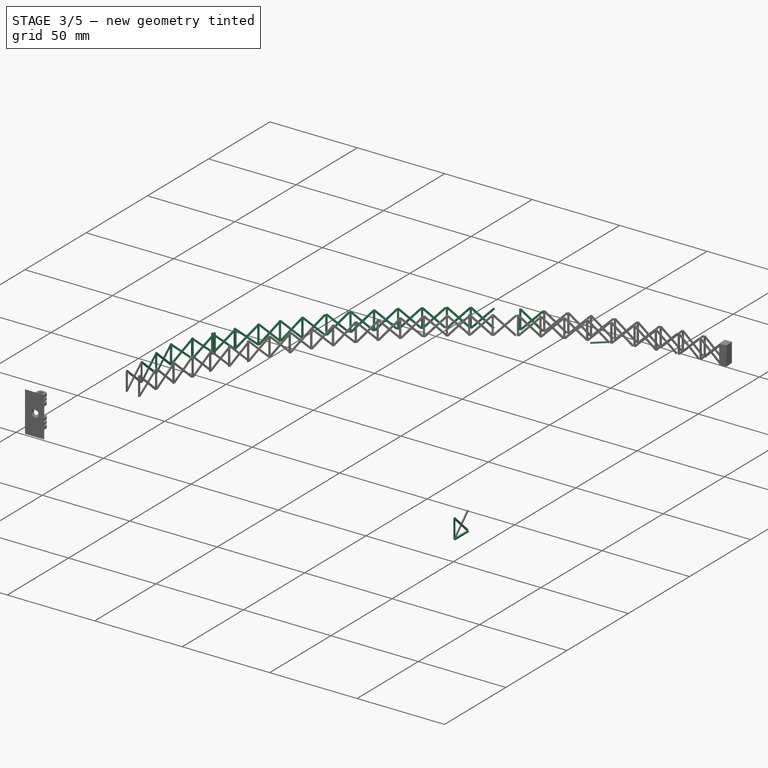
[diagram: stage 3 of 5 — iso view after this stage's code; geometry added in this stage tinted green]
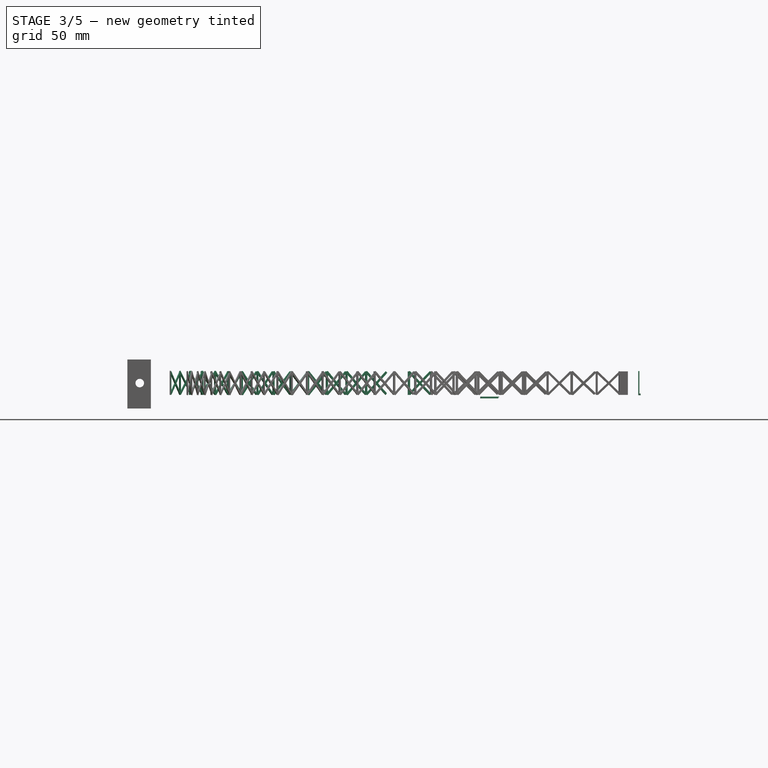
[diagram: stage 3 of 5 — front view after this stage's code; geometry added in this stage tinted green]
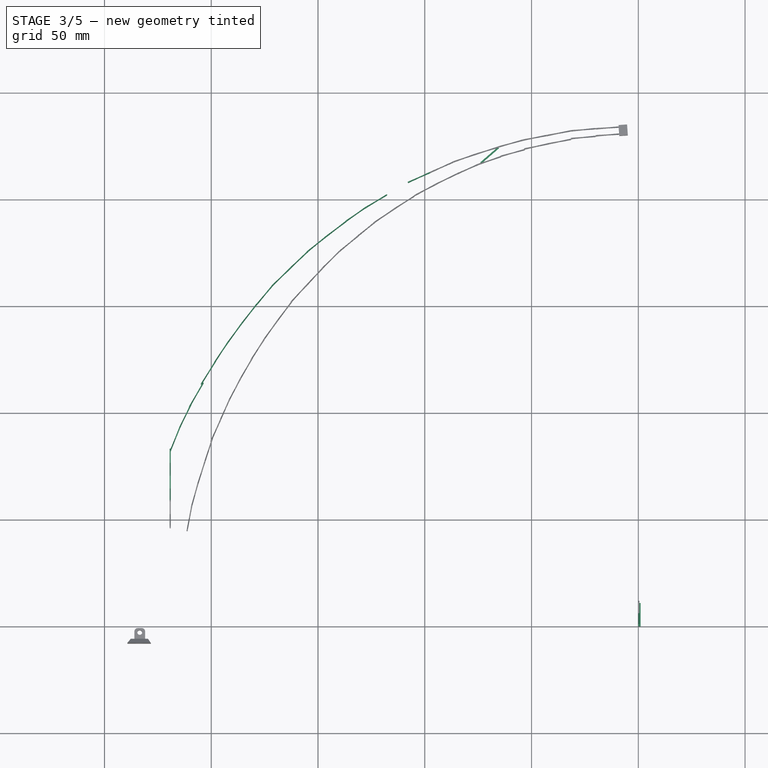
[diagram: stage 3 of 5 — top view after this stage's code; geometry added in this stage tinted green]
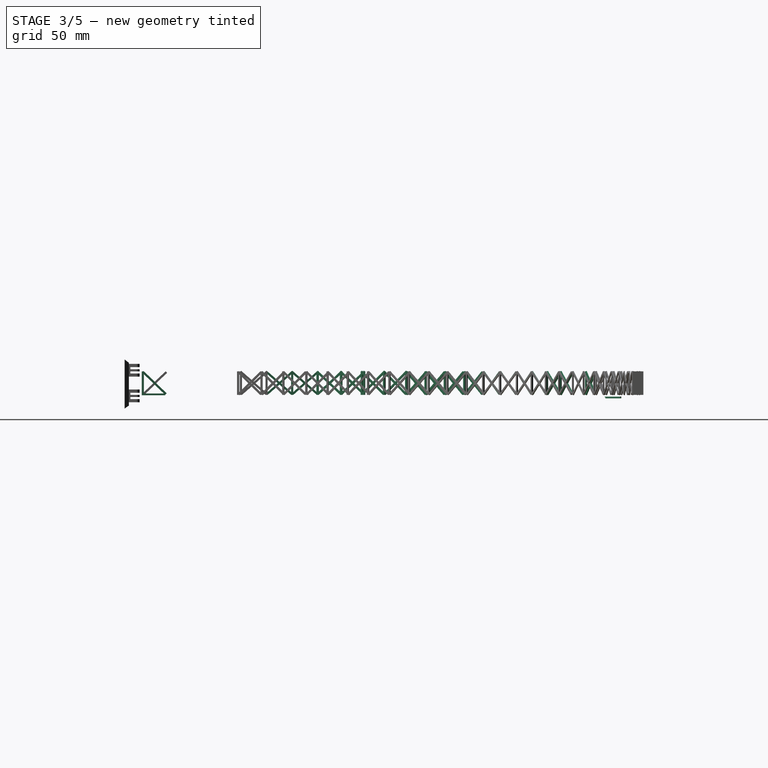
[diagram: stage 3 of 5 — right view after this stage's code; geometry added in this stage tinted green]
FEATURE [Part::Box] Box196  label="Cubo196"
  Height = 0.8
  Length = 0.8
  Placement = pos=(0.3,0,0.3) rot=(0,0,1;0rad)
  Width = 11
FEATURE [Part::Box] Box197  label="Cubo197"
  Height = 0.8
  Length = 0.8
  Width = 11
FEATURE [Part::Box] Box198  label="Cubo198"
  Height = 0.8
  Length = 0.8
  Placement = pos=(0.3,0,0.3) rot=(0,0,1;0rad)
  Width = 11
FEATURE [Part::Cut] Cut102  label="Perfil L 2da cara044"
  Base = -> Box198
  Placement = pos=(-65,223.8,-1.45) rot=(0,0,1;2.28638rad)
  Tool = -> Box197
FEATURE [Part::Box] Box203  label="Cubo203"
  Height = 11
  Length = 0.5
  Placement = pos=(0,0,0.5) rot=(0,0,1;0rad)
  Width = 1
FEATURE [Part::Box] Box204  label="Cubo204"
  Height = 11
  Length = 0.5
  Placement = pos=(0,12,0.5) rot=(0,0,1;0rad)
  Width = 1
FEATURE [Part::Box] Box205  label="Cubo205"
  Height = 16
  Length = 0.5
  Placement = pos=(0,12,0.5) rot=(1,0,0;0.855211rad)
  Width = 1
FEATURE [Part::Box] Box206  label="Cubo206"
  Height = 16
  Length = 0.5
  Placement = pos=(0,0.4,1.3) rot=(-1,0,0;0.855211rad)
  Width = 1
FEATURE [Part::MultiFuse] Fusion013  label="Refuerzo Ext 1"
  Placement = pos=(-219.5,58,0) rot=(0,0,1;0rad)
  Shapes = -> [Box203,Box204,Box205,Box206]
FEATURE [Part::Box] Box207  label="Cubo207"
  Height = 11
  Length = 0.5
  Placement = pos=(0,0,0.5) rot=(0,0,1;0rad)
  Width = 1
FEATURE [Part::Box] Box208  label="Cubo208"
  Height = 11
  Length = 0.5
  Placement = pos=(0,12,0.5) rot=(0,0,1;0rad)
  Width = 1
FEATURE [Part::Box] Box209  label="Cubo209"
  Height = 16
  Length = 0.5
  Placement = pos=(0,12,0.5) rot=(1,0,0;0.855211rad)
  Width = 1
FEATURE [Part::Box] Box210  label="Cubo210"
  Height = 16
  Length = 0.5
  Placement = pos=(0,0.4,1.3) rot=(-1,0,0;0.855211rad)
  Width = 1
FEATURE [Part::MultiFuse] Fusion014  label="Refuerzo Ext 002"
  Placement = pos=(-219.5,70,0) rot=(0,0,1;0rad)
  Shapes = -> [Box207,Box208,Box209,Box210]
FEATURE [Part::Box] Box211  label="Cubo211"
  Height = 11
  Length = 0.5
  Placement = pos=(0,0,0.5) rot=(0,0,1;0rad)
  Width = 1
FEATURE [Part::Box] Box212  label="Cubo212"
  Height = 11
  Length = 0.5
  Placement = pos=(0,12,0.5) rot=(0,0,1;0rad)
  Width = 1
FEATURE [Part::Box] Box213  label="Cubo213"
  Height = 16
  Length = 0.5
  Placement = pos=(0,12,0.5) rot=(1,0,0;0.855211rad)
  Width = 1
FEATURE [Part::Box] Box214  label="Cubo214"
  Height = 16
  Length = 0.5
  Placement = pos=(0,0.4,1.3) rot=(-1,0,0;0.855211rad)
  Width = 1
FEATURE [Part::MultiFuse] Fusion015  label="Refuerzo Ext 003"
  Placement = pos=(-215.1,93,0) rot=(0,0,-1;0.453786rad)
  Shapes = -> [Box211,Box212,Box213,Box214]
FEATURE [Part::Box] Box215  label="Cubo215"
  Height = 11
  Length = 0.5
  Placement = pos=(0,0,0.5) rot=(0,0,1;0rad)
  Width = 1
FEATURE [Part::Box] Box216  label="Cubo216"
  Height = 11
  Length = 0.5
  Placement = pos=(0,12,0.5) rot=(0,0,1;0rad)
  Width = 1
FEATURE [Part::Box] Box217  label="Cubo217"
  Height = 16
  Length = 0.5
  Placement = pos=(0,12,0.5) rot=(1,0,0;0.855211rad)
  Width = 1
FEATURE [Part::Box] Box218  label="Cubo218"
  Height = 16
  Length = 0.5
  Placement = pos=(0,0.4,1.3) rot=(-1,0,0;0.855211rad)
  Width = 1
FEATURE [Part::MultiFuse] Fusion016  label="Refuerzo Ext 004"
  Placement = pos=(-219.5,82,0) rot=(0,0,-1;0.383972rad)
  Shapes = -> [Box215,Box216,Box217,Box218]
FEATURE [Part::Box] Box219  label="Cubo219"
  Height = 11
  Length = 0.5
  Placement = pos=(0,0,0.5) rot=(0,0,1;0rad)
  Width = 1
FEATURE [Part::Box] Box220  label="Cubo220"
  Height = 11
  Length = 0.5
  Placement = pos=(0,12,0.5) rot=(0,0,1;0rad)
  Width = 1
FEATURE [Part::Box] Box221  label="Cubo221"
  Height = 16
  Length = 0.5
  Placement = pos=(0,12,0.5) rot=(1,0,0;0.855211rad)
  Width = 1
FEATURE [Part::Box] Box222  label="Cubo222"
  Height = 16
  Length = 0.5
  Placement = pos=(0,0.4,1.3) rot=(-1,0,0;0.855211rad)
  Width = 1
FEATURE [Part::MultiFuse] Fusion017  label="Refuerzo Ext 005"
  Placement = pos=(-210.5,102.8,0) rot=(0,0,-1;0.523599rad)
  Shapes = -> [Box219,Box220,Box221,Box222]
FEATURE [Part::Box] Box223  label="Cubo223"
  Height = 11
  Length = 0.5
  Placement = pos=(0,0,0.5) rot=(0,0,1;0rad)
  Width = 1
FEATURE [Part::Box] Box224  label="Cubo224"
  Height = 11
  Length = 0.5
  Placement = pos=(0,12,0.5) rot=(0,0,1;0rad)
  Width = 1
FEATURE [Part::Box] Box225  label="Cubo225"
  Height = 16
  Length = 0.5
  Placement = pos=(0,12,0.5) rot=(1,0,0;0.855211rad)
  Width = 1
FEATURE [Part::Box] Box226  label="Cubo226"
  Height = 16
  Length = 0.5
  Placement = pos=(0,0.4,1.3) rot=(-1,0,0;0.855211rad)
  Width = 1
FEATURE [Part::MultiFuse] Fusion018  label="Refuerzo Ext 006"
  Placement = pos=(-205,113.4,0) rot=(0,0,-1;0.558505rad)
  Shapes = -> [Box223,Box224,Box225,Box226]
FEATURE [Part::Box] Box227  label="Cubo227"
  Height = 11
  Length = 0.5
  Placement = pos=(0,0,0.5) rot=(0,0,1;0rad)
  Width = 1
FEATURE [Part::Box] Box229  label="Cubo229"
  Height = 15
  Length = 0.5
  Placement = pos=(0,11,0.5) rot=(1,0,0;0.802851rad)
  Width = 1
FEATURE [Part::Box] Box230  label="Cubo230"
  Height = 15
  Length = 0.5
  Placement = pos=(0,0.4,1.1) rot=(-1,0,0;0.802851rad)
  Width = 1
FEATURE [Part::MultiFuse] Fusion019  label="Refuerzo Exterior 1"
  Placement = pos=(-198.7,123.7,0) rot=(0,0,-1;0.586431rad)
  Shapes = -> [Box227,Box229,Box230]
FEATURE [Part::Box] Box231  label="Cubo231"
  Height = 11
  Length = 0.5
  Placement = pos=(0,0,0.5) rot=(0,0,1;0rad)
  Width = 1
FEATURE [Part::Box] Box232  label="Cubo232"
  Height = 15
  Length = 0.5
  Placement = pos=(0,11,0.5) rot=(1,0,0;0.802851rad)
  Width = 1
FEATURE [Part::Box] Box233  label="Cubo233"
  Height = 15
  Length = 0.5
  Placement = pos=(0,0.4,1.1) rot=(-1,0,0;0.802851rad)
  Width = 1
FEATURE [Part::MultiFuse] Fusion020  label="Refuerzo Exterior 002"
  Placement = pos=(-192.7,132.7,0) rot=(0,0,-1;0.628319rad)
  Shapes = -> [Box231,Box232,Box233]
FEATURE [Part::Box] Box234  label="Cubo234"
  Height = 11
  Length = 0.5
  Placement = pos=(0,0,0.5) rot=(0,0,1;0rad)
  Width = 1
FEATURE [Part::Box] Box235  label="Cubo235"
  Height = 15
  Length = 0.5
  Placement = pos=(0,11,0.5) rot=(1,0,0;0.802851rad)
  Width = 1
FEATURE [Part::Box] Box236  label="Cubo236"
  Height = 15
  Length = 0.5
  Placement = pos=(0,0.4,1.1) rot=(-1,0,0;0.802851rad)
  Width = 1
FEATURE [Part::MultiFuse] Fusion021  label="Refuerzo Exterior 003"
  Placement = pos=(-186.16,141.7,0) rot=(0,0,-1;0.663225rad)
  Shapes = -> [Box234,Box235,Box236]
FEATURE [Part::Box] Box237  label="Cubo237"
  Height = 11
  Length = 0.5
  Placement = pos=(0,0,0.5) rot=(0,0,1;0rad)
  Width = 1
FEATURE [Part::Box] Box238  label="Cubo238"
  Height = 15
  Length = 0.5
  Placement = pos=(0,11,0.5) rot=(1,0,0;0.802851rad)
  Width = 1
FEATURE [Part::Box] Box239  label="Cubo239"
  Height = 15
  Length = 0.5
  Placement = pos=(0,0.4,1.1) rot=(-1,0,0;0.802851rad)
  Width = 1
FEATURE [Part::MultiFuse] Fusion022  label="Refuerzo Exterior 004"
  Placement = pos=(-178.9,150.89,0) rot=(0,0,-1;0.694641rad)
  Shapes = -> [Box237,Box238,Box239]
FEATURE [Part::Box] Box240  label="Cubo240"
  Height = 11
  Length = 0.5
  Placement = pos=(0,0,0.5) rot=(0,0,1;0rad)
  Width = 1
FEATURE [Part::Box] Box241  label="Cubo241"
  Height = 15
  Length = 0.5
  Placement = pos=(0,11,0.5) rot=(1,0,0;0.802851rad)
  Width = 1
FEATURE [Part::Box] Box242  label="Cubo242"
  Height = 15
  Length = 0.5
  Placement = pos=(0,0.4,1.1) rot=(-1,0,0;0.802851rad)
  Width = 1
FEATURE [Part::MultiFuse] Fusion023  label="Refuerzo Exterior 005"
  Placement = pos=(-171.4,159.89,0) rot=(0,0,-1;0.801106rad)
  Shapes = -> [Box240,Box241,Box242]
FEATURE [Part::Box] Box243  label="Cubo243"
  Height = 11
  Length = 0.5
  Placement = pos=(0,0,0.5) rot=(0,0,1;0rad)
  Width = 1
FEATURE [Part::Box] Box244  label="Cubo244"
  Height = 15
  Length = 0.5
  Placement = pos=(0,11,0.5) rot=(1,0,0;0.802851rad)
  Width = 1
FEATURE [Part::Box] Box245  label="Cubo245"
  Height = 15
  Length = 0.5
  Placement = pos=(0,0.4,1.1) rot=(-1,0,0;0.802851rad)
  Width = 1
FEATURE [Part::MultiFuse] Fusion024  label="Refuerzo Exterior 006"
  Placement = pos=(-163.4,167.7,0) rot=(0,0,-1;0.811578rad)
  Shapes = -> [Box243,Box244,Box245]
FEATURE [Part::Box] Box246  label="Cubo246"
  Height = 11
  Length = 0.5
  Placement = pos=(0,0,0.5) rot=(0,0,1;0rad)
  Width = 1
FEATURE [Part::Box] Box247  label="Cubo247"
  Height = 15
  Length = 0.5
  Placement = pos=(0,11,0.5) rot=(1,0,0;0.802851rad)
  Width = 1
FEATURE [Part::Box] Box248  label="Cubo248"
  Height = 15
  Length = 0.5
  Placement = pos=(0,0.4,1.1) rot=(-1,0,0;0.802851rad)
  Width = 1
FEATURE [Part::MultiFuse] Fusion025  label="Refuerzo Exterior 007"
  Placement = pos=(-155.2,175.6,0) rot=(0,0,-1;0.891863rad)
  Shapes = -> [Box246,Box247,Box248]
FEATURE [Part::Box] Box249  label="Cubo249"
  Height = 11
  Length = 0.5
  Placement = pos=(0,0,0.5) rot=(0,0,1;0rad)
  Width = 1
FEATURE [Part::Box] Box250  label="Cubo250"
  Height = 15
  Length = 0.5
  Placement = pos=(0,11,0.5) rot=(1,0,0;0.802851rad)
  Width = 1
FEATURE [Part::Box] Box251  label="Cubo251"
  Height = 15
  Length = 0.5
  Placement = pos=(0,0.4,1.1) rot=(-1,0,0;0.802851rad)
  Width = 1
FEATURE [Part::MultiFuse] Fusion026  label="Refuerzo Exterior 008"
  Placement = pos=(-146.4,182.7,0) rot=(0,0,-1;0.921534rad)
  Shapes = -> [Box249,Box250,Box251]
FEATURE [Part::Box] Box252  label="Cubo252"
  Height = 11
  Length = 0.5
  Placement = pos=(0,0,0.5) rot=(0,0,1;0rad)
  Width = 1
FEATURE [Part::Box] Box253  label="Cubo253"
  Height = 15
  Length = 0.5
  Placement = pos=(0,11,0.5) rot=(1,0,0;0.802851rad)
  Width = 1
FEATURE [Part::Box] Box254  label="Cubo254"
  Height = 15
  Length = 0.5
  Placement = pos=(0,0.4,1.1) rot=(-1,0,0;0.802851rad)
  Width = 1
FEATURE [Part::MultiFuse] Fusion027  label="Refuerzo Exterior 009"
  Placement = pos=(-137.2,189.8,0) rot=(0,0,-1;0.959931rad)
  Shapes = -> [Box252,Box253,Box254]
FEATURE [Part::Box] Box255  label="Cubo255"
  Height = 11
  Length = 0.5
  Placement = pos=(0,0,0.5) rot=(0,0,1;0rad)
  Width = 1
FEATURE [Part::Box] Box256  label="Cubo256"
  Height = 15
  Length = 0.5
  Placement = pos=(0,11,0.5) rot=(1,0,0;0.802851rad)
  Width = 1
FEATURE [Part::Box] Box257  label="Cubo257"
  Height = 15
  Length = 0.5
  Placement = pos=(0,0.4,1.1) rot=(-1,0,0;0.802851rad)
  Width = 1
FEATURE [Part::MultiFuse] Fusion028  label="Refuerzo Exterior 010"
  Placement = pos=(-128,196.2,0) rot=(0,0,-1;1.02974rad)
  Shapes = -> [Box255,Box256,Box257]
FEATURE [Part::Box] Box258  label="Cubo258"
  Height = 11
  Length = 0.5
  Placement = pos=(0,0,0.5) rot=(0,0,1;0rad)
  Width = 1
FEATURE [Part::Box] Box259  label="Cubo259"
  Height = 15
  Length = 0.5
  Placement = pos=(0,11,0.5) rot=(1,0,0;0.802851rad)
  Width = 1
FEATURE [Part::Box] Box260  label="Cubo260"
  Height = 15
  Length = 0.5
  Placement = pos=(0,0.4,1.1) rot=(-1,0,0;0.802851rad)
  Width = 1
FEATURE [Part::Box] Box261  label="Cubo261"
  Height = 11
  Length = 0.5
  Placement = pos=(0,0,0.5) rot=(0,0,1;0rad)
  Width = 1
FEATURE [Part::Box] Box262  label="Cubo262"
  Height = 15
  Length = 0.5
  Placement = pos=(0,11,0.5) rot=(1,0,0;0.802851rad)
  Width = 1
FEATURE [Part::MultiFuse] Fusion030  label="Refuerzo Exterior 012"
  Placement = pos=(-108,208.1,0) rot=(0,0,-1;1.15017rad)
  Shapes = -> [Box261,Box262,Box263]
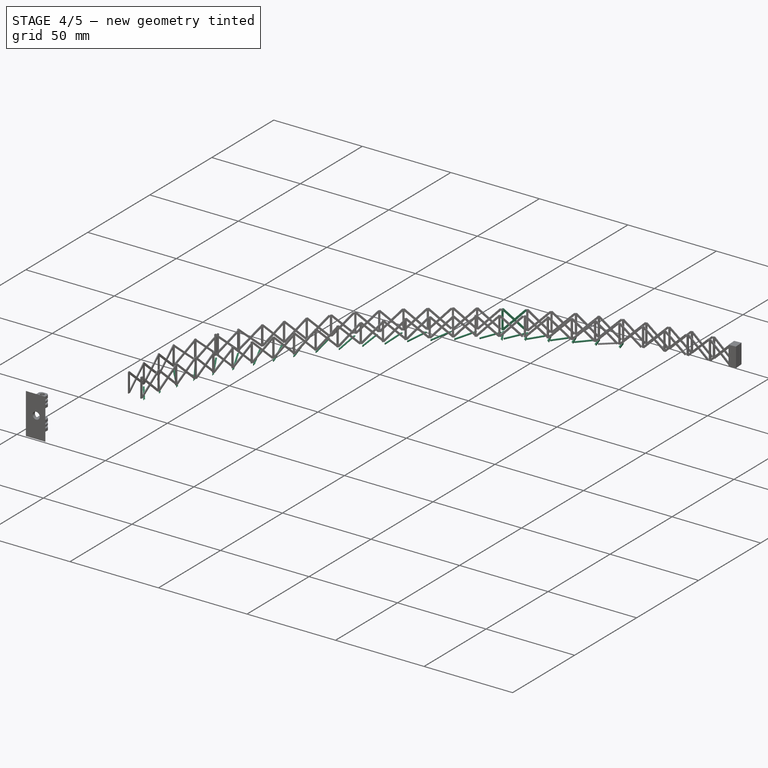
[diagram: stage 4 of 5 — iso view after this stage's code; geometry added in this stage tinted green]
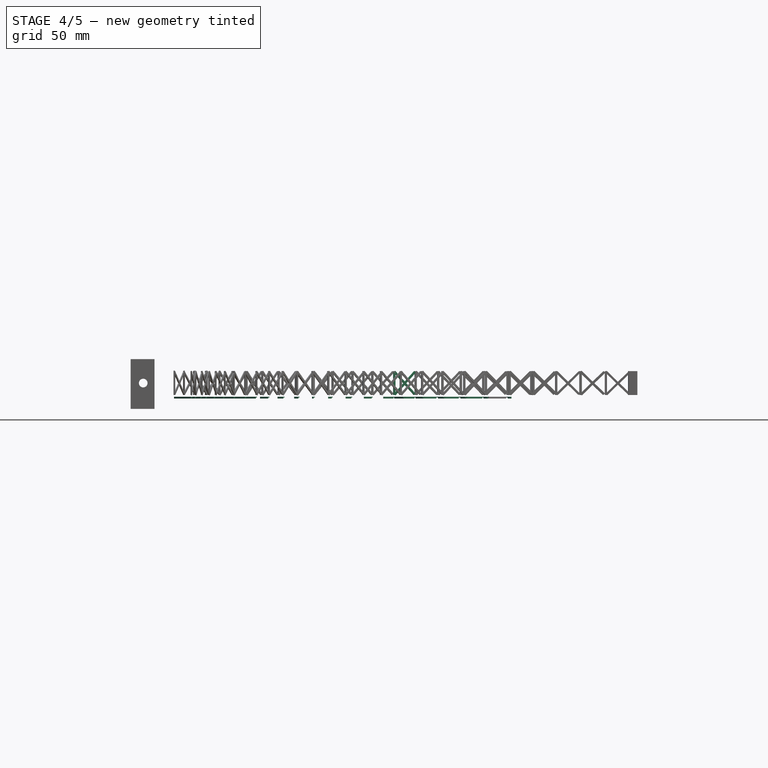
[diagram: stage 4 of 5 — front view after this stage's code; geometry added in this stage tinted green]
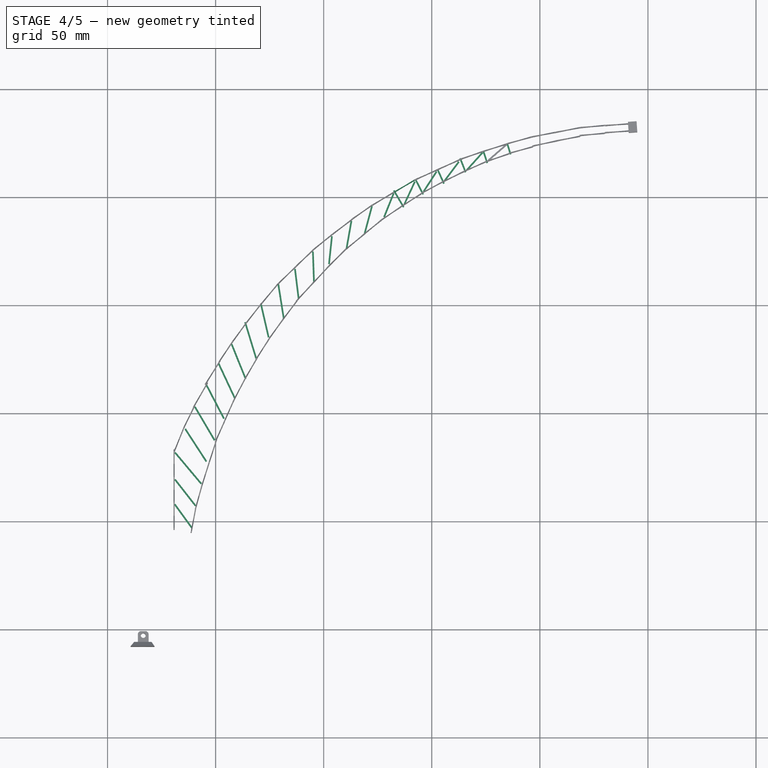
[diagram: stage 4 of 5 — top view after this stage's code; geometry added in this stage tinted green]
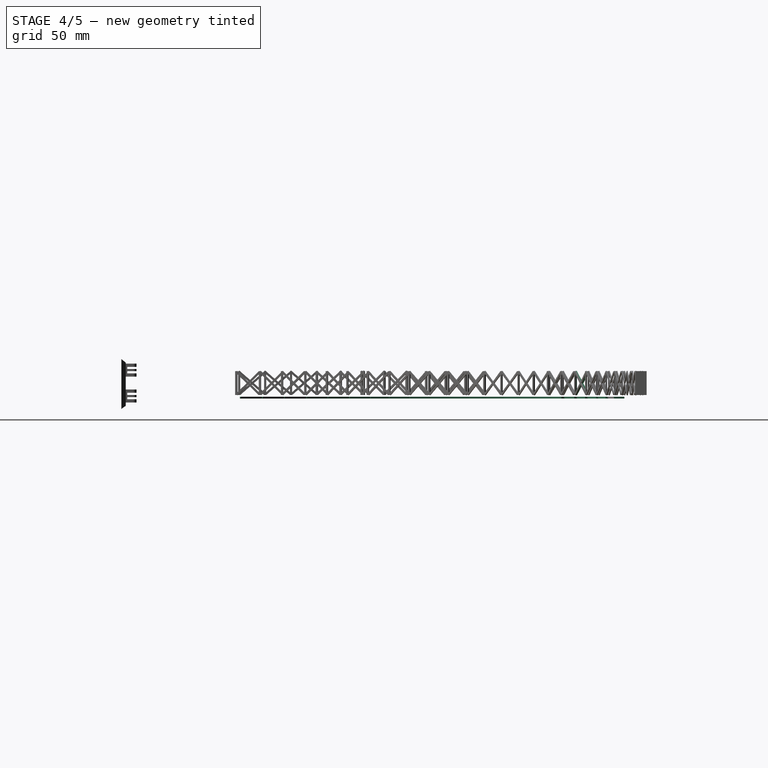
[diagram: stage 4 of 5 — right view after this stage's code; geometry added in this stage tinted green]
FEATURE [Part::Box] Box143  label="Cubo143"
  Height = 0.8
  Length = 0.8
  Width = 9
FEATURE [Part::Box] Box144  label="Cubo144"
  Height = 0.8
  Length = 0.8
  Placement = pos=(0.3,0,0.3) rot=(0,0,1;0rad)
  Width = 9
FEATURE [Part::Cut] Cut075  label="Perfil L 2da cara017"
  Base = -> Box144
  Placement = pos=(-113.6,195,-1.45) rot=(0,0,1;0.528835rad)
  Tool = -> Box143
FEATURE [Part::Box] Box145  label="Cubo145"
  Height = 0.8
  Length = 0.8
  Width = 8
FEATURE [Part::Box] Box146  label="Cubo146"
  Height = 0.8
  Length = 0.8
  Placement = pos=(0.3,0,0.3) rot=(0,0,1;0rad)
  Width = 8
FEATURE [Part::Cut] Cut076  label="Perfil L 2da cara018"
  Base = -> Box146
  Placement = pos=(-104.6,201,-1.45) rot=(0,0,1;0.476475rad)
  Tool = -> Box145
FEATURE [Part::Box] Box147  label="Cubo147"
  Height = 0.8
  Length = 0.8
  Width = 7
FEATURE [Part::Box] Box148  label="Cubo148"
  Height = 0.8
  Length = 0.8
  Placement = pos=(0.3,0,0.3) rot=(0,0,1;0rad)
  Width = 7
FEATURE [Part::Cut] Cut077  label="Perfil L 2da cara019"
  Base = -> Box148
  Placement = pos=(-95,206,-1.45) rot=(0,0,1;0.424115rad)
  Tool = -> Box147
FEATURE [Part::Box] Box149  label="Cubo149"
  Height = 0.8
  Length = 0.8
  Width = 7
FEATURE [Part::Box] Box150  label="Cubo150"
  Height = 0.8
  Length = 0.8
  Placement = pos=(0.3,0,0.3) rot=(0,0,1;0rad)
  Width = 7
FEATURE [Part::Cut] Cut078  label="Perfil L 2da cara020"
  Base = -> Box150
  Placement = pos=(-85,211.3,-1.45) rot=(0,0,1;0.371755rad)
  Tool = -> Box149
FEATURE [Part::Box] Box151  label="Cubo151"
  Height = 0.8
  Length = 0.8
  Width = 6
FEATURE [Part::Box] Box152  label="Cubo152"
  Height = 0.8
  Length = 0.8
  Placement = pos=(0.3,0,0.3) rot=(0,0,1;0rad)
  Width = 6
FEATURE [Part::Cut] Cut079  label="Perfil L 2da cara021"
  Base = -> Box152
  Placement = pos=(-75,215.6,-1.45) rot=(0,0,1;0.319395rad)
  Tool = -> Box151
FEATURE [Part::Box] Box153  label="Cubo153"
  Height = 0.8
  Length = 0.8
  Width = 5
FEATURE [Part::Box] Box154  label="Cubo154"
  Height = 0.8
  Length = 0.8
  Placement = pos=(0.3,0,0.3) rot=(0,0,1;0rad)
  Width = 5
FEATURE [Part::Cut] Cut080  label="Perfil L 2da cara022"
  Base = -> Box154
  Placement = pos=(-64.2,219.6,-1.45) rot=(0,0,1;0.301942rad)
  Tool = -> Box153
FEATURE [Part::Box] Box155  label="Cubo155"
  Height = 0.8
  Length = 0.8
  Width = 15.5
FEATURE [Part::Box] Box156  label="Cubo156"
  Height = 0.8
  Length = 0.8
  Placement = pos=(0.3,0,0.3) rot=(0,0,1;0rad)
  Width = 15.5
FEATURE [Part::Cut] Cut081  label="Perfil L 2da cara023"
  Base = -> Box156
  Placement = pos=(-218.3,69.9,-1.45) rot=(0,0,1;3.80482rad)
  Tool = -> Box155
FEATURE [Part::Box] Box157  label="Cubo157"
  Height = 0.8
  Length = 0.8
  Width = 13.5
FEATURE [Part::Box] Box158  label="Cubo158"
  Height = 0.8
  Length = 0.8
  Placement = pos=(0.3,0,0.3) rot=(0,0,1;0rad)
  Width = 13.5
FEATURE [Part::Cut] Cut082  label="Perfil L 2da cara024"
  Base = -> Box158
  Placement = pos=(-218.4,58.4,-1.45) rot=(0,0,1;3.76991rad)
  Tool = -> Box157
FEATURE [Part::Box] Box159  label="Cubo159"
  Height = 0.8
  Length = 0.8
  Width = 19
FEATURE [Part::Box] Box160  label="Cubo160"
  Height = 0.8
  Length = 0.8
  Placement = pos=(0.3,0,0.3) rot=(0,0,1;0rad)
  Width = 19
FEATURE [Part::Cut] Cut083  label="Perfil L 2da cara025"
  Base = -> Box160
  Placement = pos=(-218.3,82.4,-1.45) rot=(0,0,1;3.83972rad)
  Tool = -> Box159
FEATURE [Part::Box] Box161  label="Cubo161"
  Height = 0.8
  Length = 0.8
  Width = 18
FEATURE [Part::Box] Box162  label="Cubo162"
  Height = 0.8
  Length = 0.8
  Placement = pos=(0.3,0,0.3) rot=(0,0,1;0rad)
  Width = 18
FEATURE [Part::Cut] Cut084  label="Perfil L 2da cara026"
  Base = -> Box162
  Placement = pos=(-213.5,93.2,-1.45) rot=(0,0,1;3.71755rad)
  Tool = -> Box161
FEATURE [Part::Box] Box163  label="Cubo163"
  Height = 0.8
  Length = 0.8
  Width = 18
FEATURE [Part::Box] Box164  label="Cubo164"
  Height = 0.8
  Length = 0.8
  Placement = pos=(0.3,0,0.3) rot=(0,0,1;0rad)
  Width = 18
FEATURE [Part::Cut] Cut085  label="Perfil L 2da cara027"
  Base = -> Box164
  Placement = pos=(-209,103.4,-1.45) rot=(0,0,1;3.67392rad)
  Tool = -> Box163
FEATURE [Part::Box] Box165  label="Cubo165"
  Height = 0.8
  Length = 0.8
  Width = 17.5
FEATURE [Part::Box] Box166  label="Cubo166"
  Height = 0.8
  Length = 0.8
  Placement = pos=(0.3,0,0.3) rot=(0,0,1;0rad)
  Width = 17.5
FEATURE [Part::Cut] Cut086  label="Perfil L 2da cara028"
  Base = -> Box166
  Placement = pos=(-203.6,113.4,-1.45) rot=(0,0,1;3.62156rad)
  Tool = -> Box165
FEATURE [Part::Box] Box167  label="Cubo167"
  Height = 0.8
  Length = 0.8
  Width = 17.5
FEATURE [Part::Box] Box168  label="Cubo168"
  Height = 0.8
  Length = 0.8
  Placement = pos=(0.3,0,0.3) rot=(0,0,1;0rad)
  Width = 17.5
FEATURE [Part::Cut] Cut087  label="Perfil L 2da cara029"
  Base = -> Box168
  Placement = pos=(-198,123.4,-1.45) rot=(0,0,1;3.57793rad)
  Tool = -> Box167
FEATURE [Part::Box] Box169  label="Cubo169"
  Height = 0.8
  Length = 0.8
  Width = 17.5
FEATURE [Part::Box] Box170  label="Cubo170"
  Height = 0.8
  Length = 0.8
  Placement = pos=(0.3,0,0.3) rot=(0,0,1;0rad)
  Width = 17.5
FEATURE [Part::Cut] Cut088  label="Perfil L 2da cara030"
  Base = -> Box170
  Placement = pos=(-192,132.4,-1.45) rot=(0,0,1;3.52556rad)
  Tool = -> Box169
FEATURE [Part::Box] Box171  label="Cubo171"
  Height = 0.8
  Length = 0.8
  Width = 17.5
FEATURE [Part::Box] Box172  label="Cubo172"
  Height = 0.8
  Length = 0.8
  Placement = pos=(0.3,0,0.3) rot=(0,0,1;0rad)
  Width = 17.5
FEATURE [Part::Cut] Cut089  label="Perfil L 2da cara031"
  Base = -> Box172
  Placement = pos=(-185.7,142.4,-1.45) rot=(0,0,1;3.4383rad)
  Tool = -> Box171
FEATURE [Part::Box] Box173  label="Cubo173"
  Height = 0.8
  Length = 0.8
  Width = 16
FEATURE [Part::Box] Box174  label="Cubo174"
  Height = 0.8
  Length = 0.8
  Placement = pos=(0.3,0,0.3) rot=(0,0,1;0rad)
  Width = 16
FEATURE [Part::Cut] Cut090  label="Perfil L 2da cara032"
  Base = -> Box174
  Placement = pos=(-170.3,159.8,-1.45) rot=(0,0,1;3.29867rad)
  Tool = -> Box173
FEATURE [Part::Box] Box175  label="Cubo175"
  Height = 0.8
  Length = 0.8
  Width = 16
FEATURE [Part::Box] Box176  label="Cubo176"
  Height = 0.8
  Length = 0.8
  Placement = pos=(0.3,0,0.3) rot=(0,0,1;0rad)
  Width = 16
FEATURE [Part::Cut] Cut091  label="Perfil L 2da cara033"
  Base = -> Box176
  Placement = pos=(-178.4,150.9,-1.45) rot=(0,0,1;3.36849rad)
  Tool = -> Box175
FEATURE [Part::Box] Box177  label="Cubo177"
  Height = 0.8
  Length = 0.8
  Width = 14
FEATURE [Part::Box] Box178  label="Cubo178"
  Height = 0.8
  Length = 0.8
  Placement = pos=(0.3,0,0.3) rot=(0,0,1;0rad)
  Width = 14
FEATURE [Part::Cut] Cut092  label="Perfil L 2da cara034"
  Base = -> Box178
  Placement = pos=(-162.6,166.9,-1.45) rot=(0,0,1;3.26377rad)
  Tool = -> Box177
FEATURE [Part::Box] Box179  label="Cubo179"
  Height = 0.8
  Length = 0.8
  Width = 14
FEATURE [Part::Box] Box180  label="Cubo180"
  Height = 0.8
  Length = 0.8
  Placement = pos=(0.3,0,0.3) rot=(0,0,1;0rad)
  Width = 14
FEATURE [Part::Cut] Cut093  label="Perfil L 2da cara035"
  Base = -> Box180
  Placement = pos=(-154.3,174.9,-1.45) rot=(0,0,1;3.1765rad)
  Tool = -> Box179
FEATURE [Part::Box] Box181  label="Cubo181"
  Height = 0.8
  Length = 0.8
  Width = 13
FEATURE [Part::Box] Box182  label="Cubo182"
  Height = 0.8
  Length = 0.8
  Placement = pos=(0.3,0,0.3) rot=(0,0,1;0rad)
  Width = 13
FEATURE [Part::Cut] Cut094  label="Perfil L 2da cara036"
  Base = -> Box182
  Placement = pos=(-136.5,188.9,-1.45) rot=(0,0,1;2.96706rad)
  Tool = -> Box181
FEATURE [Part::Box] Box183  label="Cubo183"
  Height = 0.8
  Length = 0.8
  Width = 13
FEATURE [Part::Box] Box184  label="Cubo184"
  Height = 0.8
  Length = 0.8
  Placement = pos=(0.3,0,0.3) rot=(0,0,1;0rad)
  Width = 13
FEATURE [Part::Cut] Cut095  label="Perfil L 2da cara037"
  Base = -> Box184
  Placement = pos=(-145.5,181.9,-1.45) rot=(0,0,1;3.03687rad)
  Tool = -> Box183
FEATURE [Part::Box] Box185  label="Cubo185"
  Height = 0.8
  Length = 0.8
  Width = 13
FEATURE [Part::Box] Box186  label="Cubo186"
  Height = 0.8
  Length = 0.8
  Placement = pos=(0.3,0,0.3) rot=(0,0,1;0rad)
  Width = 13
FEATURE [Part::Cut] Cut096  label="Perfil L 2da cara038"
  Base = -> Box186
  Placement = pos=(-127,195.7,-1.45) rot=(0,0,1;2.87979rad)
  Tool = -> Box185
FEATURE [Part::Box] Box187  label="Cubo187"
  Height = 0.8
  Length = 0.8
  Width = 11.4
FEATURE [Part::Box] Box188  label="Cubo188"
  Height = 0.8
  Length = 0.8
  Placement = pos=(0.3,0,0.3) rot=(0,0,1;0rad)
  Width = 11.4
FEATURE [Part::Cut] Cut097  label="Perfil L 2da cara039"
  Base = -> Box188
  Placement = pos=(-107.2,206.9,-1.45) rot=(0,0,1;2.70526rad)
  Tool = -> Box187
FEATURE [Part::Box] Box189  label="Cubo189"
  Height = 0.8
  Length = 0.8
  Width = 11.8
FEATURE [Part::Box] Box190  label="Cubo190"
  Height = 0.8
  Length = 0.8
  Placement = pos=(0.3,0,0.3) rot=(0,0,1;0rad)
  Width = 11.8
FEATURE [Part::Cut] Cut098  label="Perfil L 2da cara040"
  Base = -> Box190
  Placement = pos=(-117,201.5,-1.45) rot=(0,0,1;2.75762rad)
  Tool = -> Box189
FEATURE [Part::Box] Box191  label="Cubo191"
  Height = 0.8
  Length = 0.8
  Width = 11
FEATURE [Part::Box] Box192  label="Cubo192"
  Height = 0.8
  Length = 0.8
  Placement = pos=(0.3,0,0.3) rot=(0,0,1;0rad)
  Width = 11
FEATURE [Part::Cut] Cut099  label="Perfil L 2da cara041"
  Base = -> Box192
  Placement = pos=(-97.2,211.5,-1.45) rot=(0,0,1;2.56563rad)
  Tool = -> Box191
FEATURE [Part::Box] Box193  label="Cubo193"
  Height = 0.8
  Length = 0.8
  Width = 11
FEATURE [Part::Box] Box194  label="Cubo194"
  Height = 0.8
  Length = 0.8
  Placement = pos=(0.3,0,0.3) rot=(0,0,1;0rad)
  Width = 11
FEATURE [Part::Cut] Cut100  label="Perfil L 2da cara042"
  Base = -> Box194
  Placement = pos=(-86.9,216,-1.45) rot=(0,0,1;2.49582rad)
  Tool = -> Box193
FEATURE [Part::Box] Box195  label="Cubo195"
  Height = 0.8
  Length = 0.8
  Width = 11
FEATURE [Part::Cut] Cut101  label="Perfil L 2da cara043"
  Base = -> Box196
  Placement = pos=(-76,220.2,-1.45) rot=(0,0,1;2.40855rad)
  Tool = -> Box195
FEATURE [Part::MultiFuse] Fusion029  label="Refuerzo Exterior 011"
  Placement = pos=(-117.9,202.2,0) rot=(0,0,-1;1.03673rad)
  Shapes = -> [Box258,Box259,Box260]
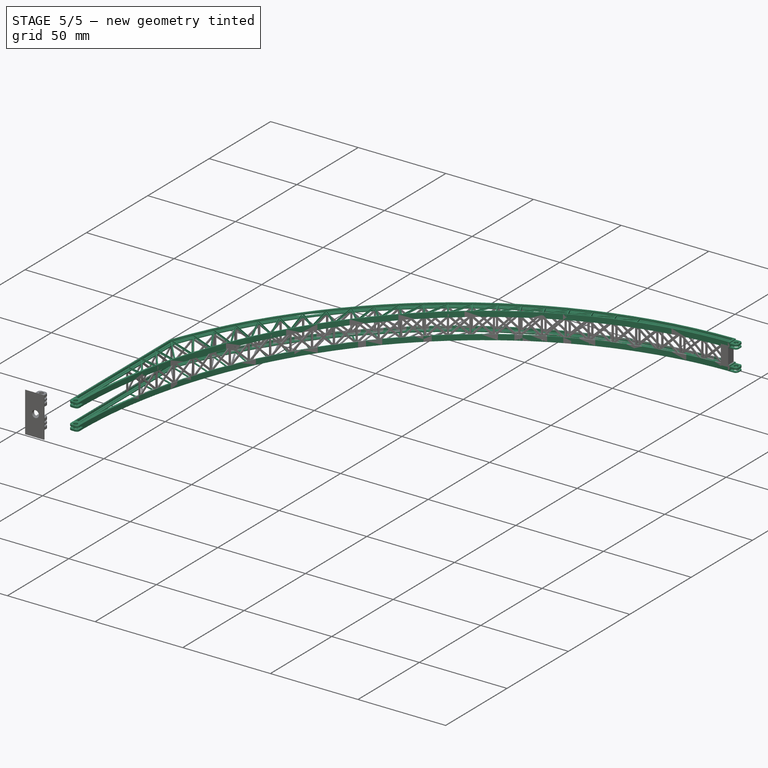
[diagram: stage 5 of 5 — iso view after this stage's code; geometry added in this stage tinted green]
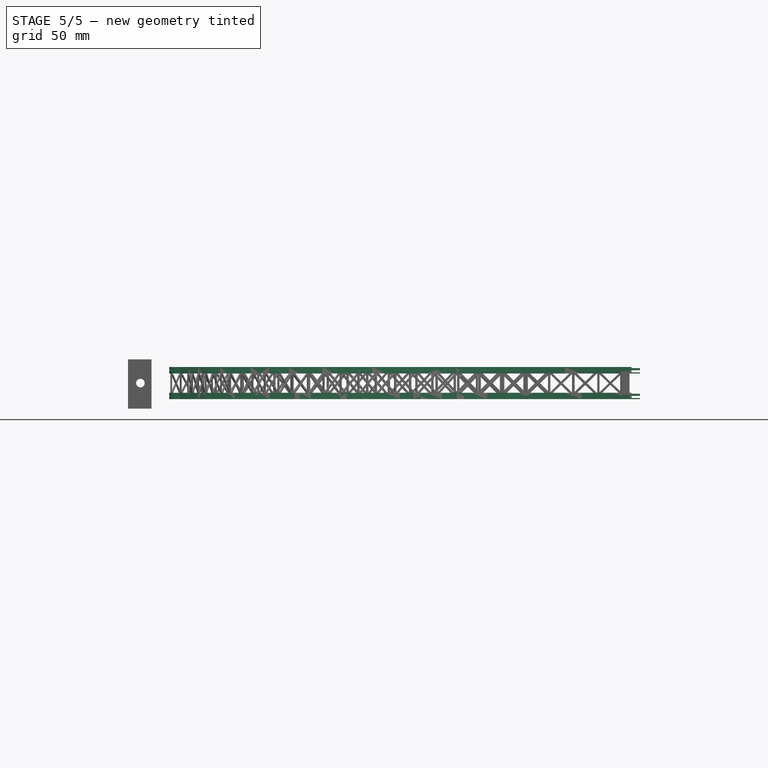
[diagram: stage 5 of 5 — front view after this stage's code; geometry added in this stage tinted green]
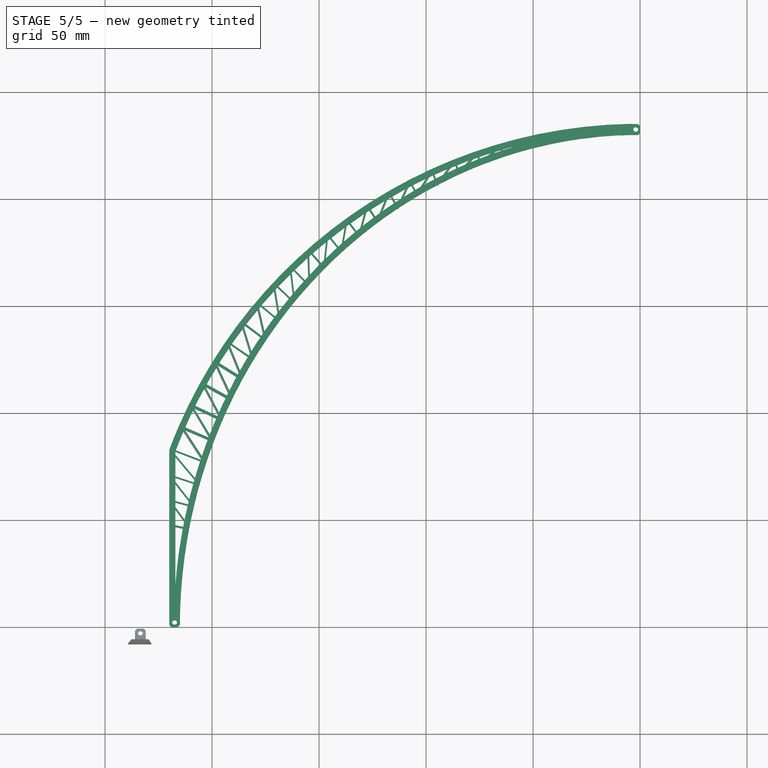
[diagram: stage 5 of 5 — top view after this stage's code; geometry added in this stage tinted green]
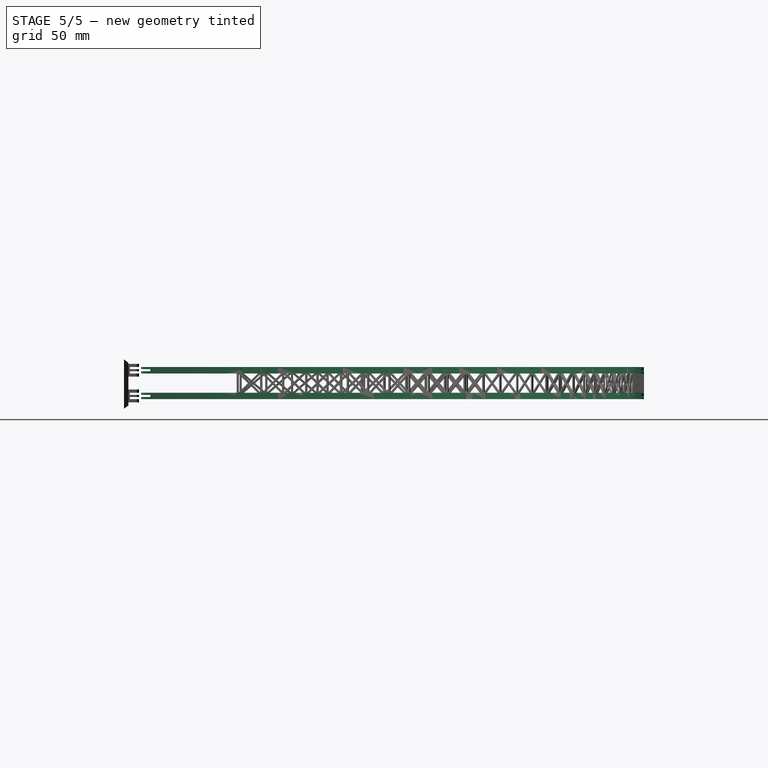
[diagram: stage 5 of 5 — right view after this stage's code; geometry added in this stage tinted green]
FEATURE [Sketcher::SketchObject] Sketch  label="Arco Exterior"
  sketch-geometry (2):
    g0: ArcOfCircle CenterX=0 CenterY=0 CenterZ=0 NormalX=0 NormalY=0 NormalZ=1 Radius=235 StartAngle=1.59046 EndAngle=2.78237
    g1: LineSegment StartX=-220 StartY=82.6136 StartZ=0 EndX=-220 EndY=3.61356 EndZ=0
  constraints (6):
    c: Coincident(g0,g-1)
    c: Radius(g0) = 235
    c: Vertical(g1)
    c: PointOnObject(g0,g1)
    c: DistanceX(g0,g-1) = 220
    c: DistanceY(g1,g0) = 79
FEATURE [Part::Part2DObjectPython] Ellipse  label="Arco Interior"  # Draft 2D object (typed FeaturePython)
  FirstAngle = 1.2
  LastAngle = 88.8
  MajorRadius = 230
  MakeFace = false
  MinorRadius = 215
  Placement = pos=(0,0,0) rot=(0,0,1;1.5708rad)
FEATURE [Sketcher::SketchObject] Sketch001  label="Perfil exterior"
  Placement = pos=(-220,4.6,0) rot=(1,0,0;1.5708rad)
  sketch-geometry (16):
    g0: LineSegment StartX=0 StartY=-1.5 StartZ=0 EndX=0 EndY=1.5 EndZ=0
    g1: LineSegment StartX=0 StartY=1.5 StartZ=0 EndX=0.6 EndY=1.5 EndZ=0
    g2: LineSegment StartX=0.6 StartY=1.5 StartZ=0 EndX=0.6 EndY=1.25 EndZ=0
    g3: LineSegment StartX=0.6 StartY=1.25 StartZ=0 EndX=0.72 EndY=1.25 EndZ=0
    g4: LineSegment StartX=0.72 StartY=1.25 StartZ=0 EndX=0.72 EndY=0.4 EndZ=0
    g5: LineSegment StartX=0.72 StartY=0.4 StartZ=0 EndX=1.72 EndY=0.4 EndZ=0
    g6: LineSegment StartX=1.72 StartY=0.4 StartZ=0 EndX=1.72 EndY=0.25 EndZ=0
    g7: LineSegment StartX=1.72 StartY=0.25 StartZ=0 EndX=2.87 EndY=0.25 EndZ=0
    g8: LineSegment StartX=2.87 StartY=0.25 StartZ=0 EndX=2.87 EndY=-0.25 EndZ=0
    g9: LineSegment StartX=2.87 StartY=-0.25 StartZ=0 EndX=1.72 EndY=-0.25 EndZ=0
    g10: LineSegment StartX=1.72 StartY=-0.25 StartZ=0 EndX=1.72 EndY=-0.4 EndZ=0
    g11: LineSegment StartX=1.72 StartY=-0.4 StartZ=0 EndX=0.72 EndY=-0.4 EndZ=0
    g12: LineSegment StartX=0.72 StartY=-0.4 StartZ=0 EndX=0.72 EndY=-1.25 EndZ=0
    g13: LineSegment StartX=0.72 StartY=-1.25 StartZ=0 EndX=0.6 EndY=-1.25 EndZ=0
    g14: LineSegment StartX=0.6 StartY=-1.25 StartZ=0 EndX=0.6 EndY=-1.5 EndZ=0
    g15: LineSegment StartX=0.6 StartY=-1.5 StartZ=0 EndX=0 EndY=-1.5 EndZ=0
  constraints (45):
    c: Coincident(g0,g1)
    c: Horizontal(g1)
    c: Coincident(g1,g2)
    c: Vertical(g2)
    c: Coincident(g2,g3)
    c: Horizontal(g3)
    c: Coincident(g3,g4)
    c: Vertical(g4)
    c: Coincident(g4,g5)
    c: Horizontal(g5)
    c: Coincident(g5,g6)
    c: Vertical(g6)
    c: Coincident(g6,g7)
    c: Horizontal(g7)
    c: Coincident(g7,g8)
    c: Vertical(g8)
    c: Coincident(g8,g9)
    c: Horizontal(g9)
    c: Coincident(g9,g10)
    c: Vertical(g10)
    c: Coincident(g10,g11)
    c: Horizontal(g11)
    c: Coincident(g11,g12)
    c: Vertical(g12)
    c: Coincident(g12,g13)
    c: Horizontal(g13)
    c: Coincident(g13,g14)
    c: Vertical(g14)
    c: Coincident(g14,g15)
    c: Coincident(g15,g0)
    c: Horizontal(g15)
    c: Symmetric(g7,g8,g-1)
    c: DistanceY(g8,g8) = 0.5
    c: Symmetric(g5,g10,g-1)
    c: DistanceY(g10,g5) = 0.8
    c: Symmetric(g0,g0,g-1)
    c: DistanceY(g0,g0) = 3
    c: Symmetric(g2,g13,g-1)
    c: DistanceY(g13,g2) = 2.5
    c: DistanceX(g1,g1) = 0.6
    c: DistanceX(g1,g3) = 0.12
    c: DistanceX(g13,g13) = 0.12
    c: DistanceX(g11,g11) = 1
    c: DistanceX(g9,g9) = 1.15
    c: DistanceX(g0,g-1) = 0
FEATURE [Part::Sweep] Sweep  label="Cabriada Exterior"
  Frenet = false
  Sections = -> [Sketch001]
  Solid = true
  Spine = -> Sketch
  Transition = 1
FEATURE [Sketcher::SketchObject] Sketch002  label="Perfil interior"
  Placement = pos=(-215,4.6,0) rot=(0,0.707107,0.707107;3.14159rad)
  sketch-geometry (16):
    g0: LineSegment StartX=0 StartY=-1.5 StartZ=0 EndX=0 EndY=1.5 EndZ=0
    g1: LineSegment StartX=0 StartY=1.5 StartZ=0 EndX=0.6 EndY=1.5 EndZ=0
    g2: LineSegment StartX=0.6 StartY=1.5 StartZ=0 EndX=0.6 EndY=1.25 EndZ=0
    g3: LineSegment StartX=0.6 StartY=1.25 StartZ=0 EndX=0.72 EndY=1.25 EndZ=0
    g4: LineSegment StartX=0.72 StartY=1.25 StartZ=0 EndX=0.72 EndY=0.4 EndZ=0
    g5: LineSegment StartX=0.72 StartY=0.4 StartZ=0 EndX=1.72 EndY=0.4 EndZ=0
    g6: LineSegment StartX=1.72 StartY=0.4 StartZ=0 EndX=1.72 EndY=0.25 EndZ=0
    g7: LineSegment StartX=1.72 StartY=0.25 StartZ=0 EndX=2.87 EndY=0.25 EndZ=0
    g8: LineSegment StartX=2.87 StartY=0.25 StartZ=0 EndX=2.87 EndY=-0.25 EndZ=0
    g9: LineSegment StartX=2.87 StartY=-0.25 StartZ=0 EndX=1.72 EndY=-0.25 EndZ=0
    g10: LineSegment StartX=1.72 StartY=-0.25 StartZ=0 EndX=1.72 EndY=-0.4 EndZ=0
    g11: LineSegment StartX=1.72 StartY=-0.4 StartZ=0 EndX=0.72 EndY=-0.4 EndZ=0
    g12: LineSegment StartX=0.72 StartY=-0.4 StartZ=0 EndX=0.72 EndY=-1.25 EndZ=0
    g13: LineSegment StartX=0.72 StartY=-1.25 StartZ=0 EndX=0.6 EndY=-1.25 EndZ=0
    g14: LineSegment StartX=0.6 StartY=-1.25 StartZ=0 EndX=0.6 EndY=-1.5 EndZ=0
    g15: LineSegment StartX=0.6 StartY=-1.5 StartZ=0 EndX=0 EndY=-1.5 EndZ=0
  constraints (45):
    c: Coincident(g0,g1)
    c: Horizontal(g1)
    c: Coincident(g1,g2)
    c: Vertical(g2)
    c: Coincident(g2,g3)
    c: Horizontal(g3)
    c: Coincident(g3,g4)
    c: Vertical(g4)
    c: Coincident(g4,g5)
    c: Horizontal(g5)
    c: Coincident(g5,g6)
    c: Vertical(g6)
    c: Coincident(g6,g7)
    c: Horizontal(g7)
    c: Coincident(g7,g8)
    c: Vertical(g8)
    c: Coincident(g8,g9)
    c: Horizontal(g9)
    c: Coincident(g9,g10)
    c: Vertical(g10)
    c: Coincident(g10,g11)
    c: Horizontal(g11)
    c: Coincident(g11,g12)
    c: Vertical(g12)
    c: Coincident(g12,g13)
    c: Horizontal(g13)
    c: Coincident(g13,g14)
    c: Vertical(g14)
    c: Coincident(g14,g15)
    c: Coincident(g15,g0)
    c: Horizontal(g15)
    c: Symmetric(g7,g8,g-1)
    c: DistanceY(g8,g8) = 0.5
    c: Symmetric(g5,g10,g-1)
    c: DistanceY(g10,g5) = 0.8
    c: Symmetric(g0,g0,g-1)
    c: DistanceY(g0,g0) = 3
    c: Symmetric(g2,g13,g-1)
    c: DistanceY(g13,g2) = 2.5
    c: DistanceX(g1,g1) = 0.6
    c: DistanceX(g1,g3) = 0.12
    c: DistanceX(g13,g13) = 0.12
    c: DistanceX(g11,g11) = 1
    c: DistanceX(g9,g9) = 1.15
    c: DistanceX(g0,g-1) = 0
FEATURE [Part::Sweep] Sweep001  label="Cabriada interior"
  Frenet = false
  Sections = -> [Sketch002]
  Solid = true
  Spine = -> Ellipse [Edge1]
  Transition = 1
FEATURE [Sketcher::SketchObject] Sketch005  label="Pivote suerior"
  Placement = pos=(-5,232.4,0) rot=(0,0,-1;1.5708rad)
  sketch-geometry (7):
    g0: LineSegment StartX=-0.94599 StartY=5 StartZ=0 EndX=0.94599 EndY=5 EndZ=0
    g1: LineSegment StartX=2.5 StartY=3.44599 StartZ=0 EndX=2.5 EndY=0 EndZ=0
    g2: LineSegment StartX=2.5 StartY=0 StartZ=0 EndX=-2.5 EndY=0 EndZ=0
    g3: LineSegment StartX=-2.5 StartY=0 StartZ=0 EndX=-2.5 EndY=3.44599 EndZ=0
    g4: ArcOfCircle CenterX=0.94599 CenterY=3.44599 CenterZ=0 NormalX=0 NormalY=0 NormalZ=1 Radius=1.55401 StartAngle=0 EndAngle=1.5708
    g5: ArcOfCircle CenterX=-0.94599 CenterY=3.44599 CenterZ=0 NormalX=0 NormalY=0 NormalZ=1 Radius=1.55401 StartAngle=1.5708 EndAngle=3.14159
    g6: Circle CenterX=0 CenterY=2.97603 CenterZ=0 NormalX=0 NormalY=0 NormalZ=1 Radius=1.15
  constraints (19):
    c: Coincident(g1,g2)
    c: Coincident(g2,g3)
    c: Horizontal(g0)
    c: Horizontal(g2)
    c: Vertical(g1)
    c: Vertical(g3)
    c: PointOnObject(g1,g-1)
    c: Tangent(g0,g4) = 1.5708
    c: Tangent(g1,g4) = 1.5708
    c: Tangent(g0,g5) = 1.5708
    c: Tangent(g3,g5) = 1.5708
    c: Symmetric(g2,g1,g-2)
    c: Equal(g4,g5)
    c: DistanceX(g2,g2) = 5
    c: DistanceY(g1,g0) = 5
    c: PointOnObject(g6,g-2)
    c: Radius(g6) = 1.15
    c: Radius(g5) = 1.55401
    c: DistanceY(g2,g6) = 2.97603
FEATURE [Part::Extrusion] Extrude  label="Pivote Superior"
  Base = -> Sketch005
  Dir = (0,0,3)
  Placement = pos=(0,0,-1.5) rot=(0,0,1;0rad)
  Solid = true
FEATURE [Part::Box] Box  label="Cubo"
  Height = 10
  Length = 10
  Placement = pos=(-4,225,1) rot=(0,0,1;0rad)
  Width = 10
FEATURE [Part::Cut] Cut
  Base = -> Extrude
  Tool = -> Box
FEATURE [Part::Box] Box001  label="Cubo001"
  Height = 1
  Length = 10
  Placement = pos=(-4,226,-1) rot=(0,0,1;0rad)
  Width = 10
FEATURE [Part::Cut] Cut001  label="Pivote superior"
  Base = -> Cut
  Tool = -> Box001
FEATURE [Part::Box] Box005  label="Cubo005"
  Height = 1
  Length = 10
  Placement = pos=(-4,1.3,1) rot=(0,0,1;0rad)
  Width = 10
FEATURE [Part::Extrusion] Extrude001
  Base = -> Sketch006
  Dir = (0,0,3)
  Solid = true
FEATURE [Part::Cut] Cut002  label="Pivote inferior"
  Base = -> Extrude001
  Placement = pos=(-217.5,-7,-1.5) rot=(0,0,1;0rad)
  Tool = -> Box005
FEATURE [Part::Box] Box006  label="Cubo006"
  Height = 10
  Length = 10
  Placement = pos=(-222,-5.3,-4) rot=(0,0,1;0rad)
  Width = 10
FEATURE [Part::Cut] Cut003  label="Cabriada Exterior001"
  Base = -> Sweep
  Tool = -> Box006
FEATURE [Part::MultiFuse] Fusion  label="Cabriada"
  Shapes = -> [Cut003,Sweep001]
FEATURE [Part::MultiFuse] Fusion001  label="Cabriada001"
  Shapes = -> [Cut002,Fusion]
FEATURE [Sketcher::SketchObject] Sketch007  label="Ubicacion perfiles L cabriada"
  sketch-geometry (28):
    g0: LineSegment StartX=0 StartY=0 StartZ=0 EndX=-350 EndY=0 EndZ=0
    g1: LineSegment StartX=0 StartY=0 StartZ=0 EndX=-327.891 EndY=123.9 EndZ=0
    g2: LineSegment StartX=0 StartY=0 StartZ=0 EndX=-281.61 EndY=122.448 EndZ=0
    g3: LineSegment StartX=0 StartY=0 StartZ=0 EndX=-293.361 EndY=144.988 EndZ=0
    g4: LineSegment StartX=0 StartY=0 StartZ=0 EndX=-222.179 EndY=123.663 EndZ=0
    g5: LineSegment StartX=0 StartY=0 StartZ=0 EndX=-301.283 EndY=187.532 EndZ=0
    g6: LineSegment StartX=0 StartY=0 StartZ=0 EndX=-268.479 EndY=185.904 EndZ=0
    g7: LineSegment StartX=0 StartY=0 StartZ=0 EndX=-192.297 EndY=147.555 EndZ=0
    g8: LineSegment StartX=0 StartY=0 StartZ=0 EndX=-187.58 EndY=159.079 EndZ=0
    g9: LineSegment StartX=0 StartY=0 StartZ=0 EndX=-190.175 EndY=177.962 EndZ=0
    g10: LineSegment StartX=0 StartY=0 StartZ=0 EndX=-171.319 EndY=176.787 EndZ=0
    g11: LineSegment StartX=0 StartY=0 StartZ=0 EndX=-167.033 EndY=190.13 EndZ=0
    g12: LineSegment StartX=0 StartY=0 StartZ=0 EndX=-160.447 EndY=201.709 EndZ=0
    g13: LineSegment StartX=0 StartY=0 StartZ=0 EndX=-149.296 EndY=207.767 EndZ=0
    g14: LineSegment StartX=0 StartY=0 StartZ=0 EndX=-142.117 EndY=219.679 EndZ=0
    g15: LineSegment StartX=0 StartY=0 StartZ=0 EndX=-130.569 EndY=225.243 EndZ=0
    g16: LineSegment StartX=0 StartY=0 StartZ=0 EndX=-120.14 EndY=232.767 EndZ=0
    g17: LineSegment StartX=0 StartY=0 StartZ=0 EndX=-122.304 EndY=268.371 EndZ=0
    g18: LineSegment StartX=0 StartY=0 StartZ=0 EndX=-105.63 EndY=265.436 EndZ=0
    g19: LineSegment StartX=0 StartY=0 StartZ=0 EndX=-87.7082 EndY=256.175 EndZ=0
    g20: LineSegment StartX=0 StartY=0 StartZ=0 EndX=-74.3199 EndY=257.487 EndZ=0
    g21: LineSegment StartX=0 StartY=0 StartZ=0 EndX=-65.9413 EndY=278.951 EndZ=0
    g22: LineSegment StartX=0 StartY=0 StartZ=0 EndX=-51.7584 EndY=279.263 EndZ=0
    g23: LineSegment StartX=0 StartY=0 StartZ=0 EndX=-36.722 EndY=271.602 EndZ=0
    g24: LineSegment StartX=0 StartY=0 StartZ=0 EndX=-240.042 EndY=77.5315 EndZ=0
    g25: LineSegment StartX=0 StartY=0 StartZ=0 EndX=-229.512 EndY=61.927 EndZ=0
    g26: LineSegment StartX=0 StartY=0 StartZ=0 EndX=-226.496 EndY=49.3841 EndZ=0
    g27: LineSegment StartX=0 StartY=0 StartZ=0 EndX=-4.55677 EndY=0.762542 EndZ=0
  constraints (57):
    c: Coincident(g0,g-1)
    c: Horizontal(g0)
    c: Coincident(g1,g-1)
    c: Coincident(g2,g-1)
    c: Angle(g1,g0) = 0.361283
    c: Angle(g1,g2) = -0.0488692
    c: Distance(g0) = 350
    c: Coincident(g6,g-1)
    c: Coincident(g7,g-1)
    c: Angle(g3,g2) = 0.0488692
    c: Coincident(g0,g3)
    c: Coincident(g0,g4)
    c: Coincident(g0,g5)
    c: Angle(g4,g3) = 0.0488692
    c: Angle(g5,g4) = 0.0488692
    c: Angle(g6,g5) = 0.0488692
    c: Angle(g7,g6) = 0.0488692
    c: Coincident(g10,g-1)
    c: Coincident(g12,g-1)
    c: Coincident(g13,g-1)
    c: Coincident(g14,g-1)
    c: Angle(g8,g7) = 0.0488692
    c: Angle(g9,g8) = 0.0488692
    c: Angle(g10,g9) = 0.0488692
    c: Coincident(g0,g8)
    c: Coincident(g0,g9)
    c: Coincident(g0,g11)
    c: Angle(g11,g10) = 0.0488692
    c: Angle(g12,g11) = 0.0488692
    c: Angle(g13,g12) = 0.0488692
    c: Angle(g14,g13) = 0.0488692
    c: Coincident(g15,g-1)
    c: Coincident(g16,g-1)
    c: Coincident(g17,g-1)
    c: Coincident(g19,g-1)
    c: Coincident(g20,g-1)
    c: Coincident(g21,g-1)
    c: Coincident(g22,g-1)
    c: Angle(g15,g14) = 0.0488692
    c: Angle(g16,g15) = 0.0488692
    c: Angle(g17,g16) = 0.0488692
    c: Angle(g18,g17) = 0.0488692
    c: Coincident(g0,g18)
    c: Coincident(g0,g23)
    c: Angle(g19,g18) = 0.0488692
    c: Angle(g20,g19) = 0.0488692
    c: Angle(g21,g20) = 0.0488692
    c: Angle(g22,g21) = 0.0488692
    c: Angle(g23,g22) = 0.0488692
    c: Coincident(g0,g24)
    c: Coincident(g26,g-1)
    c: Coincident(g0,g25)
    c: Coincident(g0,g27)
    c: Angle(g24,g25) = 0.0488692
    c: Angle(g26,g27) = 0.0488692
    c: Angle(g25,g26) = 0.0488692
    c: Angle(g1,g24) = 0.0488692
FEATURE [Sketcher::SketchObject] Sketch009  label="Arco Exterior001"
  sketch-geometry (2):
    g0: ArcOfCircle CenterX=0 CenterY=0 CenterZ=0 NormalX=0 NormalY=0 NormalZ=1 Radius=235 StartAngle=1.59046 EndAngle=2.78237
    g1: LineSegment StartX=-220 StartY=82.6136 StartZ=0 EndX=-220 EndY=3.61356 EndZ=0
  constraints (6):
    c: Coincident(g0,g-1)
    c: Radius(g0) = 235
    c: Vertical(g1)
    c: PointOnObject(g0,g1)
    c: DistanceX(g0,g-1) = 220
    c: DistanceY(g1,g0) = 79
FEATURE [Part::Part2DObjectPython] Ellipse001  label="Arco Interior001"  # Draft 2D object (typed FeaturePython)
  FirstAngle = 1.2
  LastAngle = 88.8
  MajorRadius = 230
  MakeFace = false
  MinorRadius = 215
  Placement = pos=(0,0,0) rot=(0,0,1;1.5708rad)
FEATURE [Sketcher::SketchObject] Sketch010  label="Perfil exterior001"
  Placement = pos=(-220,4.6,0) rot=(1,0,0;1.5708rad)
  sketch-geometry (16):
    g0: LineSegment StartX=0 StartY=-1.5 StartZ=0 EndX=0 EndY=1.5 EndZ=0
    g1: LineSegment StartX=0 StartY=1.5 StartZ=0 EndX=0.6 EndY=1.5 EndZ=0
    g2: LineSegment StartX=0.6 StartY=1.5 StartZ=0 EndX=0.6 EndY=1.25 EndZ=0
    g3: LineSegment StartX=0.6 StartY=1.25 StartZ=0 EndX=0.72 EndY=1.25 EndZ=0
    g4: LineSegment StartX=0.72 StartY=1.25 StartZ=0 EndX=0.72 EndY=0.4 EndZ=0
    g5: LineSegment StartX=0.72 StartY=0.4 StartZ=0 EndX=1.72 EndY=0.4 EndZ=0
    g6: LineSegment StartX=1.72 StartY=0.4 StartZ=0 EndX=1.72 EndY=0.25 EndZ=0
    g7: LineSegment StartX=1.72 StartY=0.25 StartZ=0 EndX=2.87 EndY=0.25 EndZ=0
    g8: LineSegment StartX=2.87 StartY=0.25 StartZ=0 EndX=2.87 EndY=-0.25 EndZ=0
    g9: LineSegment StartX=2.87 StartY=-0.25 StartZ=0 EndX=1.72 EndY=-0.25 EndZ=0
    g10: LineSegment StartX=1.72 StartY=-0.25 StartZ=0 EndX=1.72 EndY=-0.4 EndZ=0
    g11: LineSegment StartX=1.72 StartY=-0.4 StartZ=0 EndX=0.72 EndY=-0.4 EndZ=0
    g12: LineSegment StartX=0.72 StartY=-0.4 StartZ=0 EndX=0.72 EndY=-1.25 EndZ=0
    g13: LineSegment StartX=0.72 StartY=-1.25 StartZ=0 EndX=0.6 EndY=-1.25 EndZ=0
    g14: LineSegment StartX=0.6 StartY=-1.25 StartZ=0 EndX=0.6 EndY=-1.5 EndZ=0
    g15: LineSegment StartX=0.6 StartY=-1.5 StartZ=0 EndX=0 EndY=-1.5 EndZ=0
  constraints (45):
    c: Coincident(g0,g1)
    c: Horizontal(g1)
    c: Coincident(g1,g2)
    c: Vertical(g2)
    c: Coincident(g2,g3)
    c: Horizontal(g3)
    c: Coincident(g3,g4)
    c: Vertical(g4)
    c: Coincident(g4,g5)
    c: Horizontal(g5)
    c: Coincident(g5,g6)
    c: Vertical(g6)
    c: Coincident(g6,g7)
    c: Horizontal(g7)
    c: Coincident(g7,g8)
    c: Vertical(g8)
    c: Coincident(g8,g9)
    c: Horizontal(g9)
    c: Coincident(g9,g10)
    c: Vertical(g10)
    c: Coincident(g10,g11)
    c: Horizontal(g11)
    c: Coincident(g11,g12)
    c: Vertical(g12)
    c: Coincident(g12,g13)
    c: Horizontal(g13)
    c: Coincident(g13,g14)
    c: Vertical(g14)
    c: Coincident(g14,g15)
    c: Coincident(g15,g0)
    c: Horizontal(g15)
    c: Symmetric(g7,g8,g-1)
    c: DistanceY(g8,g8) = 0.5
    c: Symmetric(g5,g10,g-1)
    c: DistanceY(g10,g5) = 0.8
    c: Symmetric(g0,g0,g-1)
    c: DistanceY(g0,g0) = 3
    c: Symmetric(g2,g13,g-1)
    c: DistanceY(g13,g2) = 2.5
    c: DistanceX(g1,g1) = 0.6
    c: DistanceX(g1,g3) = 0.12
    c: DistanceX(g13,g13) = 0.12
    c: DistanceX(g11,g11) = 1
    c: DistanceX(g9,g9) = 1.15
    c: DistanceX(g0,g-1) = 0
FEATURE [Part::Sweep] Sweep002  label="Cabriada Exterior002"
  Frenet = false
  Sections = -> [Sketch010]
  Solid = true
  Spine = -> Sketch009
  Transition = 1
FEATURE [Sketcher::SketchObject] Sketch011  label="Perfil interior001"
  Placement = pos=(-215,4.6,0) rot=(0,0.707107,0.707107;3.14159rad)
  sketch-geometry (16):
    g0: LineSegment StartX=0 StartY=-1.5 StartZ=0 EndX=0 EndY=1.5 EndZ=0
    g1: LineSegment StartX=0 StartY=1.5 StartZ=0 EndX=0.6 EndY=1.5 EndZ=0
    g2: LineSegment StartX=0.6 StartY=1.5 StartZ=0 EndX=0.6 EndY=1.25 EndZ=0
    g3: LineSegment StartX=0.6 StartY=1.25 StartZ=0 EndX=0.72 EndY=1.25 EndZ=0
    g4: LineSegment StartX=0.72 StartY=1.25 StartZ=0 EndX=0.72 EndY=0.4 EndZ=0
    g5: LineSegment StartX=0.72 StartY=0.4 StartZ=0 EndX=1.72 EndY=0.4 EndZ=0
    g6: LineSegment StartX=1.72 StartY=0.4 StartZ=0 EndX=1.72 EndY=0.25 EndZ=0
    g7: LineSegment StartX=1.72 StartY=0.25 StartZ=0 EndX=2.87 EndY=0.25 EndZ=0
    g8: LineSegment StartX=2.87 StartY=0.25 StartZ=0 EndX=2.87 EndY=-0.25 EndZ=0
    g9: LineSegment StartX=2.87 StartY=-0.25 StartZ=0 EndX=1.72 EndY=-0.25 EndZ=0
    g10: LineSegment StartX=1.72 StartY=-0.25 StartZ=0 EndX=1.72 EndY=-0.4 EndZ=0
    g11: LineSegment StartX=1.72 StartY=-0.4 StartZ=0 EndX=0.72 EndY=-0.4 EndZ=0
    g12: LineSegment StartX=0.72 StartY=-0.4 StartZ=0 EndX=0.72 EndY=-1.25 EndZ=0
    g13: LineSegment StartX=0.72 StartY=-1.25 StartZ=0 EndX=0.6 EndY=-1.25 EndZ=0
    g14: LineSegment StartX=0.6 StartY=-1.25 StartZ=0 EndX=0.6 EndY=-1.5 EndZ=0
    g15: LineSegment StartX=0.6 StartY=-1.5 StartZ=0 EndX=0 EndY=-1.5 EndZ=0
  constraints (45):
    c: Coincident(g0,g1)
    c: Horizontal(g1)
    c: Coincident(g1,g2)
    c: Vertical(g2)
    c: Coincident(g2,g3)
    c: Horizontal(g3)
    c: Coincident(g3,g4)
    c: Vertical(g4)
    c: Coincident(g4,g5)
    c: Horizontal(g5)
    c: Coincident(g5,g6)
    c: Vertical(g6)
    c: Coincident(g6,g7)
    c: Horizontal(g7)
    c: Coincident(g7,g8)
    c: Vertical(g8)
    c: Coincident(g8,g9)
    c: Horizontal(g9)
    c: Coincident(g9,g10)
    c: Vertical(g10)
    c: Coincident(g10,g11)
    c: Horizontal(g11)
    c: Coincident(g11,g12)
    c: Vertical(g12)
    c: Coincident(g12,g13)
    c: Horizontal(g13)
    c: Coincident(g13,g14)
    c: Vertical(g14)
    c: Coincident(g14,g15)
    c: Coincident(g15,g0)
    c: Horizontal(g15)
    c: Symmetric(g7,g8,g-1)
    c: DistanceY(g8,g8) = 0.5
    c: Symmetric(g5,g10,g-1)
    c: DistanceY(g10,g5) = 0.8
    c: Symmetric(g0,g0,g-1)
    c: DistanceY(g0,g0) = 3
    c: Symmetric(g2,g13,g-1)
    c: DistanceY(g13,g2) = 2.5
    c: DistanceX(g1,g1) = 0.6
    c: DistanceX(g1,g3) = 0.12
    c: DistanceX(g13,g13) = 0.12
    c: DistanceX(g11,g11) = 1
    c: DistanceX(g9,g9) = 1.15
    c: DistanceX(g0,g-1) = 0
FEATURE [Part::Sweep] Sweep003  label="Cabriada interior001"
  Frenet = false
  Sections = -> [Sketch011]
  Solid = true
  Spine = -> Ellipse001 [Edge1]
  Transition = 1
FEATURE [Sketcher::SketchObject] Sketch012  label="Pivote suerior001"
  Placement = pos=(-5,232.4,0) rot=(0,0,-1;1.5708rad)
  sketch-geometry (7):
    g0: LineSegment StartX=-0.94599 StartY=5 StartZ=0 EndX=0.94599 EndY=5 EndZ=0
    g1: LineSegment StartX=2.5 StartY=3.44599 StartZ=0 EndX=2.5 EndY=0 EndZ=0
    g2: LineSegment StartX=2.5 StartY=0 StartZ=0 EndX=-2.5 EndY=0 EndZ=0
    g3: LineSegment StartX=-2.5 StartY=0 StartZ=0 EndX=-2.5 EndY=3.44599 EndZ=0
    g4: ArcOfCircle CenterX=0.94599 CenterY=3.44599 CenterZ=0 NormalX=0 NormalY=0 NormalZ=1 Radius=1.55401 StartAngle=0 EndAngle=1.5708
    g5: ArcOfCircle CenterX=-0.94599 CenterY=3.44599 CenterZ=0 NormalX=0 NormalY=0 NormalZ=1 Radius=1.55401 StartAngle=1.5708 EndAngle=3.14159
    g6: Circle CenterX=0 CenterY=2.97603 CenterZ=0 NormalX=0 NormalY=0 NormalZ=1 Radius=1.15
  constraints (19):
    c: Coincident(g1,g2)
    c: Coincident(g2,g3)
    c: Horizontal(g0)
    c: Horizontal(g2)
    c: Vertical(g1)
    c: Vertical(g3)
    c: PointOnObject(g1,g-1)
    c: Tangent(g0,g4) = 1.5708
    c: Tangent(g1,g4) = 1.5708
    c: Tangent(g0,g5) = 1.5708
    c: Tangent(g3,g5) = 1.5708
    c: Symmetric(g2,g1,g-2)
    c: Equal(g4,g5)
    c: DistanceX(g2,g2) = 5
    c: DistanceY(g1,g0) = 5
    c: PointOnObject(g6,g-2)
    c: Radius(g6) = 1.15
    c: Radius(g5) = 1.55401
    c: DistanceY(g2,g6) = 2.97603
FEATURE [Part::Extrusion] Extrude002  label="Pivote Superior001"
  Base = -> Sketch012
  Dir = (0,0,3)
  Placement = pos=(0,0,-1.5) rot=(0,0,1;0rad)
  Solid = true
FEATURE [Part::Box] Box105  label="Cubo105"
  Height = 10
  Length = 10
  Placement = pos=(-4,225,1) rot=(0,0,1;0rad)
  Width = 10
FEATURE [Part::Cut] Cut054
  Base = -> Extrude002
  Tool = -> Box105
FEATURE [Part::Box] Box106  label="Cubo106"
  Height = 1
  Length = 10
  Placement = pos=(-4,226,-1) rot=(0,0,1;0rad)
  Width = 10
FEATURE [Part::Cut] Cut055  label="Pivote superior001"
  Base = -> Cut054
  Tool = -> Box106
FEATURE [Sketcher::SketchObject] Sketch013  label="Pivote inf 001"
  Placement = pos=(0,12,0) rot=(0,0,1;3.14159rad)
  sketch-geometry (7):
    g0: LineSegment StartX=-0.94599 StartY=5 StartZ=0 EndX=0.94599 EndY=5 EndZ=0
    g1: LineSegment StartX=2.5 StartY=3.44599 StartZ=0 EndX=2.5 EndY=0 EndZ=0
    g2: LineSegment StartX=2.5 StartY=0 StartZ=0 EndX=-2.5 EndY=0 EndZ=0
    g3: LineSegment StartX=-2.5 StartY=0 StartZ=0 EndX=-2.5 EndY=3.44599 EndZ=0
    g4: ArcOfCircle CenterX=0.94599 CenterY=3.44599 CenterZ=0 NormalX=0 NormalY=0 NormalZ=1 Radius=1.55401 StartAngle=0 EndAngle=1.5708
    g5: ArcOfCircle CenterX=-0.94599 CenterY=3.44599 CenterZ=0 NormalX=0 NormalY=0 NormalZ=1 Radius=1.55401 StartAngle=1.5708 EndAngle=3.14159
    g6: Circle CenterX=0 CenterY=2.97603 CenterZ=0 NormalX=0 NormalY=0 NormalZ=1 Radius=1.15
  constraints (19):
    c: Coincident(g1,g2)
    c: Coincident(g2,g3)
    c: Horizontal(g0)
    c: Horizontal(g2)
    c: Vertical(g1)
    c: Vertical(g3)
    c: PointOnObject(g1,g-1)
    c: Tangent(g0,g4) = 1.5708
    c: Tangent(g1,g4) = 1.5708
    c: Tangent(g0,g5) = 1.5708
    c: Tangent(g3,g5) = 1.5708
    c: Symmetric(g2,g1,g-2)
    c: Equal(g4,g5)
    c: DistanceX(g2,g2) = 5
    c: DistanceY(g1,g0) = 5
    c: PointOnObject(g6,g-2)
    c: Radius(g6) = 1.15
    c: Radius(g5) = 1.55401
    c: DistanceY(g2,g6) = 2.97603
FEATURE [Part::Box] Box107  label="Cubo107"
  Height = 1
  Length = 10
  Placement = pos=(-4,1.3,1) rot=(0,0,1;0rad)
  Width = 10
FEATURE [Part::Extrusion] Extrude003
  Base = -> Sketch013
  Dir = (0,0,3)
  Solid = true
FEATURE [Part::Cut] Cut056  label="Pivote inferior001"
  Base = -> Extrude003
  Placement = pos=(-217.5,-7,-1.5) rot=(0,0,1;0rad)
  Tool = -> Box107
FEATURE [Part::Box] Box108  label="Cubo108"
  Height = 10
  Length = 10
  Placement = pos=(-222,-5.3,-4) rot=(0,0,1;0rad)
  Width = 10
FEATURE [Part::Cut] Cut057  label="Cabriada Exterior003"
  Base = -> Sweep002
  Tool = -> Box108
FEATURE [Part::MultiFuse] Fusion006  label="Cabriada002"
  Shapes = -> [Cut057,Sweep003]
FEATURE [Part::MultiFuse] Fusion007  label="Cabriada003"
  Shapes = -> [Cut056,Fusion006]
FEATURE [Part::MultiFuse] Fusion011  label="Cabriada completa lado 2"
  Placement = pos=(0,0,12) rot=(0,0,1;0rad)
FEATURE [Sketcher::SketchObject] Sketch014  label="Perfil L chico002"
  Placement = pos=(0,-12,0) rot=(-1,0,0;1.5708rad)
  sketch-geometry (6):
    g0: LineSegment StartX=-0.4 StartY=0.4 StartZ=0 EndX=0.4 EndY=0.4 EndZ=0
    g1: LineSegment StartX=0.4 StartY=0.4 StartZ=0 EndX=0.4 EndY=1.2 EndZ=0
    g2: LineSegment StartX=0.4 StartY=1.2 StartZ=0 EndX=0.1 EndY=1.2 EndZ=0
    g3: LineSegment StartX=0.1 StartY=1.2 StartZ=0 EndX=0.1 EndY=0.7 EndZ=0
    g4: LineSegment StartX=0.1 StartY=0.7 StartZ=0 EndX=-0.4 EndY=0.7 EndZ=0
    g5: LineSegment StartX=-0.4 StartY=0.7 StartZ=0 EndX=-0.4 EndY=0.4 EndZ=0
  constraints (18):
    c: Horizontal(g0)
    c: Coincident(g0,g1)
    c: Vertical(g1)
    c: Coincident(g1,g2)
    c: Coincident(g2,g3)
    c: Vertical(g3)
    c: Coincident(g3,g4)
    c: Horizontal(g4)
    c: Coincident(g4,g5)
    c: Vertical(g5)
    c: Horizontal(g2)
    c: DistanceY(g1,g1) = 0.8
    c: DistanceY(g5,g5) = 0.3
    c: Coincident(g0,g5)
    c: DistanceX(g0,g0) = 0.8
    c: DistanceX(g2,g2) = 0.3
    c: DistanceY(g-1,g0) = 0.4
    c: DistanceX(g-1,g3) = 0.1
FEATURE [Part::MultiFuse] Fusion002  label="Cabriada sin perfiles"
  Shapes = -> [Fusion001,Cut001]
FEATURE [Part::Box] Box109  label="Cubo109"
  Height = 0.8
  Length = 0.8
  Width = 17
FEATURE [Part::Box] Box110  label="Cubo110"
  Height = 0.8
  Length = 0.8
  Placement = pos=(0.3,0,0.3) rot=(0,0,1;0rad)
  Width = 17
FEATURE [Part::Cut] Cut058  label="Perfil L 2da cara"
  Base = -> Box110
  Placement = pos=(-203.4,76.3,-1.45) rot=(0,0,1;1.20951rad)
  Tool = -> Box109
FEATURE [Part::Box] Box111  label="Cubo111"
  Height = 0.8
  Length = 0.8
  Width = 17
FEATURE [Part::Box] Box112  label="Cubo112"
  Height = 0.8
  Length = 0.8
  Placement = pos=(0.3,0,0.3) rot=(0,0,1;0rad)
  Width = 14
FEATURE [Part::Cut] Cut059  label="Perfil L 2da cara001"
  Base = -> Box112
  Placement = pos=(-206.4,65.8,-1.45) rot=(0,0,1;1.25664rad)
  Tool = -> Box111
FEATURE [Part::Box] Box113  label="Cubo113"
  Height = 0.8
  Length = 0.8
  Width = 11
FEATURE [Part::Box] Box114  label="Cubo114"
  Height = 0.8
  Length = 0.8
  Placement = pos=(0.3,0,0.3) rot=(0,0,1;0rad)
  Width = 11
FEATURE [Part::Cut] Cut060  label="Perfil L 2da cara002"
  Base = -> Box114
  Placement = pos=(-209,55.6,-1.45) rot=(0,0,1;1.309rad)
  Tool = -> Box113
FEATURE [Part::Box] Box115  label="Cubo115"
  Height = 0.8
  Length = 0.8
  Width = 11
FEATURE [Part::Box] Box116  label="Cubo116"
  Height = 0.8
  Length = 0.8
  Placement = pos=(0.3,0,0.3) rot=(0,0,1;0rad)
  Width = 9
FEATURE [Part::Cut] Cut061  label="Perfil L 2da cara003"
  Base = -> Box116
  Placement = pos=(-211,45,-1.45) rot=(0,0,1;1.36136rad)
  Tool = -> Box115
FEATURE [Part::Box] Box117  label="Cubo117"
  Height = 0.8
  Length = 0.8
  Width = 17
FEATURE [Part::Box] Box118  label="Cubo118"
  Height = 0.8
  Length = 0.8
  Placement = pos=(0.3,0,0.3) rot=(0,0,1;0rad)
  Width = 17
FEATURE [Part::Cut] Cut062  label="Perfil L 2da cara004"
  Base = -> Box118
  Placement = pos=(-199.6,86,-1.47) rot=(0,0,1;1.16937rad)
  Tool = -> Box117
FEATURE [Part::Box] Box119  label="Cubo119"
  Height = 0.8
  Length = 0.8
  Width = 17
FEATURE [Part::Box] Box120  label="Cubo120"
  Height = 0.8
  Length = 0.8
  Placement = pos=(0.3,0,0.3) rot=(0,0,1;0rad)
  Width = 17
FEATURE [Part::Cut] Cut063  label="Perfil L 2da cara005"
  Base = -> Box120
  Placement = pos=(-195.4,95.7,-1.45) rot=(0,0,1;1.13446rad)
  Tool = -> Box119
FEATURE [Part::Box] Box121  label="Cubo121"
  Height = 0.8
  Length = 0.8
  Width = 16
FEATURE [Part::Box] Box122  label="Cubo122"
  Height = 0.8
  Length = 0.8
  Placement = pos=(0.3,0,0.3) rot=(0,0,1;0rad)
  Width = 16
FEATURE [Part::Cut] Cut064  label="Perfil L 2da cara006"
  Base = -> Box122
  Placement = pos=(-191.4,105.3,-1.45) rot=(0,0,1;1.06465rad)
  Tool = -> Box121
FEATURE [Part::Box] Box123  label="Cubo123"
  Height = 0.8
  Length = 0.8
  Width = 15
FEATURE [Part::Box] Box124  label="Cubo124"
  Height = 0.8
  Length = 0.8
  Placement = pos=(0.3,0,0.3) rot=(0,0,1;0rad)
  Width = 15
FEATURE [Part::Cut] Cut065  label="Perfil L 2da cara007"
  Base = -> Box124
  Placement = pos=(-186.4,115,-1.45) rot=(0,0,1;1.01229rad)
  Tool = -> Box123
FEATURE [Part::Box] Box125  label="Cubo125"
  Height = 0.8
  Length = 0.8
  Width = 14
FEATURE [Part::Box] Box126  label="Cubo126"
  Height = 0.8
  Length = 0.8
  Placement = pos=(0.3,0,0.3) rot=(0,0,1;0rad)
  Width = 14
FEATURE [Part::Cut] Cut066  label="Perfil L 2da cara008"
  Base = -> Box126
  Placement = pos=(-181.4,124.4,-1.45) rot=(0,0,1;0.959931rad)
  Tool = -> Box125
FEATURE [Part::Box] Box127  label="Cubo127"
  Height = 0.8
  Length = 0.8
  Width = 14
FEATURE [Part::Box] Box128  label="Cubo128"
  Height = 0.8
  Length = 0.8
  Placement = pos=(0.3,0,0.3) rot=(0,0,1;0rad)
  Width = 14
FEATURE [Part::Cut] Cut067  label="Perfil L 2da cara009"
  Base = -> Box128
  Placement = pos=(-175.4,133.4,-1.45) rot=(0,0,1;0.925025rad)
  Tool = -> Box127
FEATURE [Part::Box] Box129  label="Cubo129"
  Height = 0.8
  Length = 0.8
  Width = 13
FEATURE [Part::Box] Box130  label="Cubo130"
  Height = 0.8
  Length = 0.8
  Placement = pos=(0.3,0,0.3) rot=(0,0,1;0rad)
  Width = 13
FEATURE [Part::Cut] Cut068  label="Perfil L 2da cara010"
  Base = -> Box130
  Placement = pos=(-169.4,142.8,-1.45) rot=(0,0,1;0.881391rad)
  Tool = -> Box129
FEATURE [Part::Box] Box131  label="Cubo131"
  Height = 0.8
  Length = 0.8
  Width = 13
FEATURE [Part::Box] Box132  label="Cubo132"
  Height = 0.8
  Length = 0.8
  Placement = pos=(0.3,0,0.3) rot=(0,0,1;0rad)
  Width = 13
FEATURE [Part::Cut] Cut069  label="Perfil L 2da cara011"
  Base = -> Box132
  Placement = pos=(-162.3,151.3,-1.45) rot=(0,0,1;0.811578rad)
  Tool = -> Box131
FEATURE [Part::Box] Box133  label="Cubo133"
  Height = 0.8
  Length = 0.8
  Width = 12
FEATURE [Part::Box] Box134  label="Cubo134"
  Height = 0.8
  Length = 0.8
  Placement = pos=(0.3,0,0.3) rot=(0,0,1;0rad)
  Width = 12
FEATURE [Part::Cut] Cut070  label="Perfil L 2da cara012"
  Base = -> Box134
  Placement = pos=(-155.4,159.3,-1.45) rot=(0,0,1;0.776672rad)
  Tool = -> Box133
FEATURE [Part::Box] Box135  label="Cubo135"
  Height = 0.8
  Length = 0.8
  Width = 11
FEATURE [Part::Box] Box136  label="Cubo136"
  Height = 0.8
  Length = 0.8
  Placement = pos=(0.3,0,0.3) rot=(0,0,1;0rad)
  Width = 11
FEATURE [Part::Cut] Cut071  label="Perfil L 2da cara013"
  Base = -> Box136
  Placement = pos=(-148,167.2,-1.45) rot=(0,0,1;0.727802rad)
  Tool = -> Box135
FEATURE [Part::Box] Box137  label="Cubo137"
  Height = 0.8
  Length = 0.8
  Width = 10
FEATURE [Part::Box] Box138  label="Cubo138"
  Height = 0.8
  Length = 0.8
  Placement = pos=(0.3,0,0.3) rot=(0,0,1;0rad)
  Width = 10
FEATURE [Part::Cut] Cut072  label="Perfil L 2da cara014"
  Base = -> Box138
  Placement = pos=(-140.2,175,-1.45) rot=(0,0,1;0.680678rad)
  Tool = -> Box137
FEATURE [Part::Box] Box139  label="Cubo139"
  Height = 0.8
  Length = 0.8
  Width = 10
FEATURE [Part::Box] Box140  label="Cubo140"
  Height = 0.8
  Length = 0.8
  Placement = pos=(0.3,0,0.3) rot=(0,0,1;0rad)
  Width = 10
FEATURE [Part::Cut] Cut073  label="Perfil L 2da cara015"
  Base = -> Box140
  Placement = pos=(-131.7,182,-1.45) rot=(0,0,1;0.645772rad)
  Tool = -> Box139
FEATURE [Part::Box] Box141  label="Cubo141"
  Height = 0.8
  Length = 0.8
  Width = 9
FEATURE [Part::Box] Box142  label="Cubo142"
  Height = 0.8
  Length = 0.8
  Placement = pos=(0.3,0,0.3) rot=(0,0,1;0rad)
  Width = 9
FEATURE [Part::Cut] Cut074  label="Perfil L 2da cara016"
  Base = -> Box142
  Placement = pos=(-123.4,189.1,-1.45) rot=(0,0,1;0.575959rad)
  Tool = -> Box141
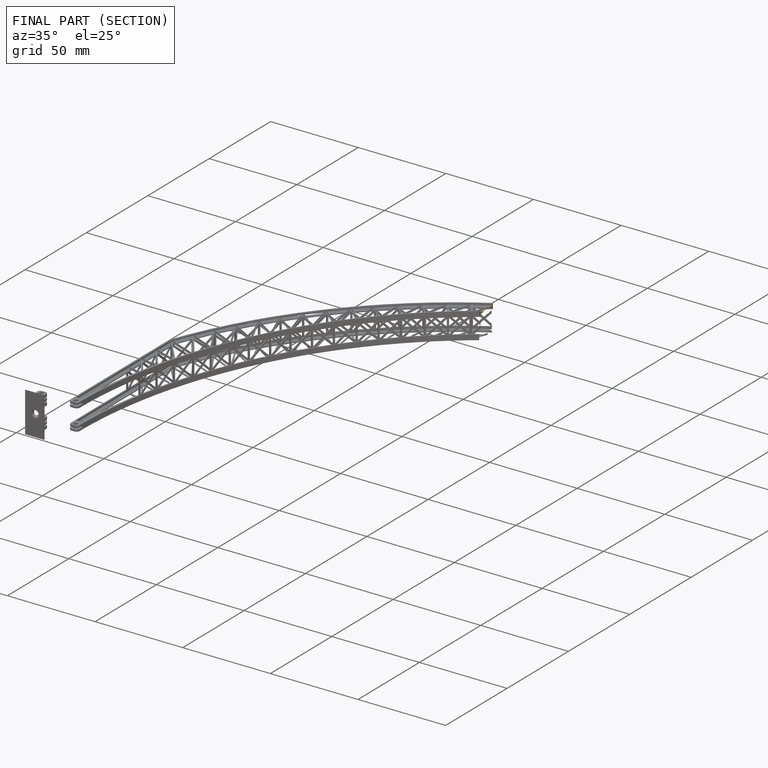
[diagram: finished part — half-section view (interior)]
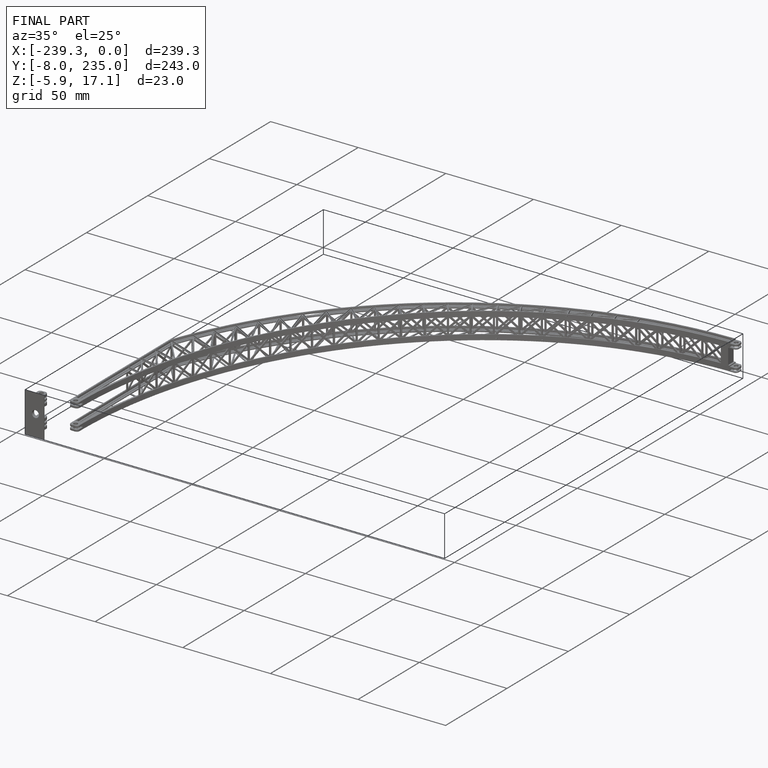
[diagram: finished part — iso view with bounding-box wireframe]
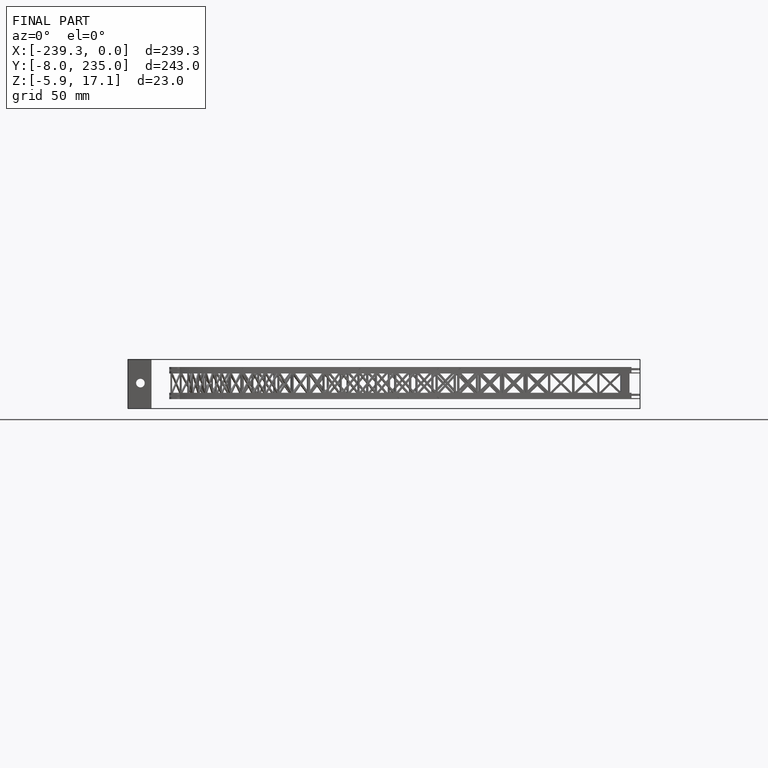
[diagram: finished part — front view with bounding-box wireframe]
